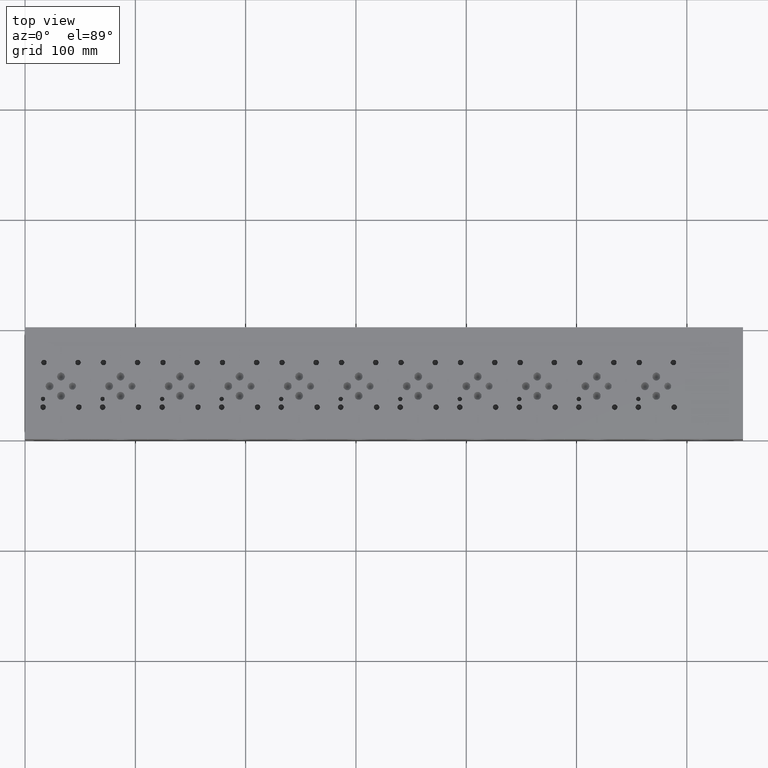
[diagram: clean part render]
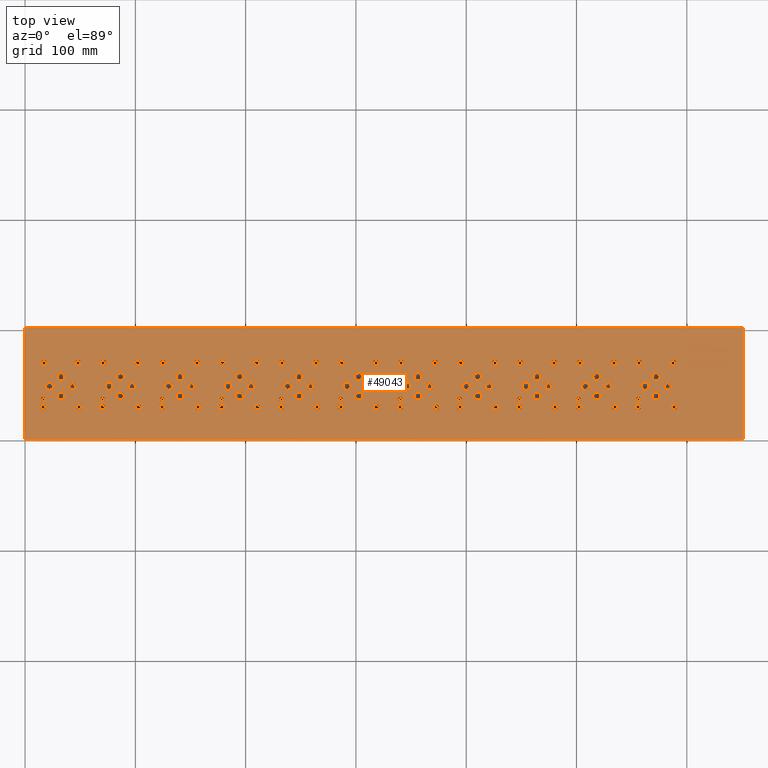
[diagram: same view with one face highlighted and labeled with its STEP entity id]
A machine part, top view. The second image highlights one B-rep face of the part: STEP entity #49043.
In plain terms, the highlighted planar face has unit normal (0, 0, 1).
Its self-contained STEP definition (entity closure, byte-faithful):
#1383=CIRCLE('',#51360,2.5019);
#1384=CIRCLE('',#51361,2.5019);
#1390=CIRCLE('',#51371,2.5019);
#1391=CIRCLE('',#51372,2.5019);
#1397=CIRCLE('',#51382,2.5019);
#1398=CIRCLE('',#51383,2.5019);
#1404=CIRCLE('',#51393,2.5019);
#1405=CIRCLE('',#51394,2.5019);
#1411=CIRCLE('',#51404,2.5019);
#1412=CIRCLE('',#51405,2.5019);
#1418=CIRCLE('',#51415,2.5019);
#1419=CIRCLE('',#51416,2.5019);
#1425=CIRCLE('',#51426,2.5019);
#1426=CIRCLE('',#51427,2.5019);
#1432=CIRCLE('',#51437,2.5019);
#1433=CIRCLE('',#51438,2.5019);
#1439=CIRCLE('',#51448,2.5019);
#1440=CIRCLE('',#51449,2.5019);
#1446=CIRCLE('',#51459,2.5019);
#1447=CIRCLE('',#51460,2.5019);
#1453=CIRCLE('',#51470,2.5019);
#1454=CIRCLE('',#51471,2.5019);
#1460=CIRCLE('',#51481,2.5019);
#1461=CIRCLE('',#51482,2.5019);
#1467=CIRCLE('',#51492,2.5019);
#1468=CIRCLE('',#51493,2.5019);
#1474=CIRCLE('',#51503,2.5019);
#1475=CIRCLE('',#51504,2.5019);
#1481=CIRCLE('',#51514,2.5019);
#1482=CIRCLE('',#51515,2.5019);
#1488=CIRCLE('',#51525,2.5019);
#1489=CIRCLE('',#51526,2.5019);
#1495=CIRCLE('',#51536,2.5019);
#1496=CIRCLE('',#51537,2.5019);
#1502=CIRCLE('',#51547,2.5019);
#1503=CIRCLE('',#51548,2.5019);
#1509=CIRCLE('',#51558,2.5019);
#1510=CIRCLE('',#51559,2.5019);
#1516=CIRCLE('',#51569,2.5019);
#1517=CIRCLE('',#51570,2.5019);
#1523=CIRCLE('',#51580,2.5019);
#1524=CIRCLE('',#51581,2.5019);
#1530=CIRCLE('',#51591,2.5019);
#1531=CIRCLE('',#51592,2.5019);
#1537=CIRCLE('',#51602,2.5019);
#1538=CIRCLE('',#51603,2.5019);
#1544=CIRCLE('',#51613,2.5019);
#1545=CIRCLE('',#51614,2.5019);
#1551=CIRCLE('',#51624,2.5019);
#1552=CIRCLE('',#51625,2.5019);
#1558=CIRCLE('',#51635,2.5019);
#1559=CIRCLE('',#51636,2.5019);
#1565=CIRCLE('',#51646,2.5019);
#1566=CIRCLE('',#51647,2.5019);
#1572=CIRCLE('',#51657,2.5019);
#1573=CIRCLE('',#51658,2.5019);
#1579=CIRCLE('',#51668,2.5019);
#1580=CIRCLE('',#51669,2.5019);
#1586=CIRCLE('',#51679,2.5019);
#1587=CIRCLE('',#51680,2.5019);
#1593=CIRCLE('',#51690,2.5019);
#1594=CIRCLE('',#51691,2.5019);
#1600=CIRCLE('',#51701,2.5019);
#1601=CIRCLE('',#51702,2.5019);
#1607=CIRCLE('',#51712,2.5019);
#1608=CIRCLE('',#51713,2.5019);
#1614=CIRCLE('',#51723,2.5019);
#1615=CIRCLE('',#51724,2.5019);
#1621=CIRCLE('',#51734,2.5019);
#1622=CIRCLE('',#51735,2.5019);
#1628=CIRCLE('',#51745,2.5019);
#1629=CIRCLE('',#51746,2.5019);
#1635=CIRCLE('',#51756,2.5019);
#1636=CIRCLE('',#51757,2.5019);
#1642=CIRCLE('',#51767,2.5019);
#1643=CIRCLE('',#51768,2.5019);
#1649=CIRCLE('',#51778,2.5019);
#1650=CIRCLE('',#51779,2.5019);
#1656=CIRCLE('',#51789,2.5019);
#1657=CIRCLE('',#51790,2.5019);
#1660=CIRCLE('',#51796,3.175);
#1661=CIRCLE('',#51797,3.175);
#1664=CIRCLE('',#51802,3.175);
#1665=CIRCLE('',#51803,3.175);
#1668=CIRCLE('',#51808,3.175);
#1669=CIRCLE('',#51809,3.175);
#1672=CIRCLE('',#51814,3.175);
#1673=CIRCLE('',#51815,3.175);
#1676=CIRCLE('',#51820,3.175);
#1677=CIRCLE('',#51821,3.175);
#1680=CIRCLE('',#51826,3.175);
#1681=CIRCLE('',#51827,3.175);
#1684=CIRCLE('',#51832,3.175);
#1685=CIRCLE('',#51833,3.175);
#1688=CIRCLE('',#51838,3.175);
#1689=CIRCLE('',#51839,3.175);
#1692=CIRCLE('',#51844,3.175);
#1693=CIRCLE('',#51845,3.175);
#1696=CIRCLE('',#51850,3.175);
#1697=CIRCLE('',#51851,3.175);
#1700=CIRCLE('',#51856,3.175);
#1701=CIRCLE('',#51857,3.175);
#1704=CIRCLE('',#51862,3.5687);
#1705=CIRCLE('',#51863,3.5687);
#1708=CIRCLE('',#51868,3.5687);
#1709=CIRCLE('',#51869,3.5687);
#1712=CIRCLE('',#51874,3.5687);
#1713=CIRCLE('',#51875,3.5687);
#1716=CIRCLE('',#51880,3.5687);
#1717=CIRCLE('',#51881,3.5687);
#1720=CIRCLE('',#51886,3.5687);
#1721=CIRCLE('',#51887,3.5687);
#1724=CIRCLE('',#51892,3.5687);
#1725=CIRCLE('',#51893,3.5687);
#1728=CIRCLE('',#51898,3.5687);
#1729=CIRCLE('',#51899,3.5687);
#1732=CIRCLE('',#51904,3.5687);
#1733=CIRCLE('',#51905,3.5687);
#1736=CIRCLE('',#51910,3.5687);
#1737=CIRCLE('',#51911,3.5687);
#1740=CIRCLE('',#51916,3.5687);
#1741=CIRCLE('',#51917,3.5687);
#1744=CIRCLE('',#51922,3.5687);
#1745=CIRCLE('',#51923,3.5687);
#1748=CIRCLE('',#51928,3.5687);
#1749=CIRCLE('',#51929,3.5687);
#1752=CIRCLE('',#51934,3.5687);
#1753=CIRCLE('',#51935,3.5687);
#1756=CIRCLE('',#51940,3.5687);
#1757=CIRCLE('',#51941,3.5687);
#1760=CIRCLE('',#51946,3.5687);
#1761=CIRCLE('',#51947,3.5687);
#1764=CIRCLE('',#51952,3.5687);
#1765=CIRCLE('',#51953,3.5687);
#1768=CIRCLE('',#51958,3.5687);
#1769=CIRCLE('',#51959,3.5687);
#1772=CIRCLE('',#51964,3.5687);
#1773=CIRCLE('',#51965,3.5687);
#1776=CIRCLE('',#51970,3.5687);
#1777=CIRCLE('',#51971,3.5687);
#1780=CIRCLE('',#51976,3.5687);
#1781=CIRCLE('',#51977,3.5687);
#1784=CIRCLE('',#51982,3.5687);
#1785=CIRCLE('',#51983,3.5687);
#1788=CIRCLE('',#51988,3.5687);
#1789=CIRCLE('',#51989,3.5687);
#1792=CIRCLE('',#51994,3.5687);
#1793=CIRCLE('',#51995,3.5687);
#1796=CIRCLE('',#52000,3.5687);
#1797=CIRCLE('',#52001,3.5687);
#1800=CIRCLE('',#52006,3.5687);
#1801=CIRCLE('',#52007,3.5687);
#1804=CIRCLE('',#52012,3.5687);
#1805=CIRCLE('',#52013,3.5687);
#1808=CIRCLE('',#52018,3.5687);
#1809=CIRCLE('',#52019,3.5687);
#1812=CIRCLE('',#52024,3.5687);
#1813=CIRCLE('',#52025,3.5687);
#1816=CIRCLE('',#52030,3.5687);
#1817=CIRCLE('',#52031,3.5687);
#1820=CIRCLE('',#52036,3.5687);
#1821=CIRCLE('',#52037,3.5687);
#1824=CIRCLE('',#52042,3.5687);
#1825=CIRCLE('',#52043,3.5687);
#1828=CIRCLE('',#52048,3.5687);
#1829=CIRCLE('',#52049,3.5687);
#1832=CIRCLE('',#52054,3.5687);
#1833=CIRCLE('',#52055,3.5687);
#1836=CIRCLE('',#52060,1.9812);
#1837=CIRCLE('',#52061,1.9812);
#1840=CIRCLE('',#52066,1.9812);
#1841=CIRCLE('',#52067,1.9812);
#1844=CIRCLE('',#52072,1.9812);
#1845=CIRCLE('',#52073,1.9812);
#1848=CIRCLE('',#52078,1.9812);
#1849=CIRCLE('',#52079,1.9812);
#1852=CIRCLE('',#52084,1.9812);
#1853=CIRCLE('',#52085,1.9812);
#1856=CIRCLE('',#52090,1.9812);
#1857=CIRCLE('',#52091,1.9812);
#1860=CIRCLE('',#52096,1.9812);
#1861=CIRCLE('',#52097,1.9812);
#1864=CIRCLE('',#52102,1.9812);
#1865=CIRCLE('',#52103,1.9812);
#1868=CIRCLE('',#52108,1.9812);
#1869=CIRCLE('',#52109,1.9812);
#1872=CIRCLE('',#52114,1.9812);
#1873=CIRCLE('',#52115,1.9812);
#1876=CIRCLE('',#52120,1.9812);
#1877=CIRCLE('',#52121,1.9812);
#1883=CIRCLE('',#52130,2.5019);
#1884=CIRCLE('',#52131,2.5019);
#1890=CIRCLE('',#52141,2.5019);
#1891=CIRCLE('',#52142,2.5019);
#1897=CIRCLE('',#52152,2.5019);
#1898=CIRCLE('',#52153,2.5019);
#1904=CIRCLE('',#52163,2.5019);
#1905=CIRCLE('',#52164,2.5019);
#2291=FACE_BOUND('',#10132,.T.);
#2292=FACE_BOUND('',#10133,.T.);
#2293=FACE_BOUND('',#10134,.T.);
#2294=FACE_BOUND('',#10135,.T.);
#2295=FACE_BOUND('',#10136,.T.);
#2296=FACE_BOUND('',#10137,.T.);
#2297=FACE_BOUND('',#10138,.T.);
#2298=FACE_BOUND('',#10139,.T.);
#2299=FACE_BOUND('',#10140,.T.);
#2300=FACE_BOUND('',#10141,.T.);
#2301=FACE_BOUND('',#10142,.T.);
#2302=FACE_BOUND('',#10143,.T.);
#2303=FACE_BOUND('',#10144,.T.);
#2304=FACE_BOUND('',#10145,.T.);
#2305=FACE_BOUND('',#10146,.T.);
#2306=FACE_BOUND('',#10147,.T.);
#2307=FACE_BOUND('',#10148,.T.);
#2308=FACE_BOUND('',#10149,.T.);
#2309=FACE_BOUND('',#10150,.T.);
#2310=FACE_BOUND('',#10151,.T.);
#2311=FACE_BOUND('',#10152,.T.);
#2312=FACE_BOUND('',#10153,.T.);
#2313=FACE_BOUND('',#10154,.T.);
#2314=FACE_BOUND('',#10155,.T.);
#2315=FACE_BOUND('',#10156,.T.);
#2316=FACE_BOUND('',#10157,.T.);
#2317=FACE_BOUND('',#10158,.T.);
#2318=FACE_BOUND('',#10159,.T.);
#2319=FACE_BOUND('',#10160,.T.);
#2320=FACE_BOUND('',#10161,.T.);
#2321=FACE_BOUND('',#10162,.T.);
#2322=FACE_BOUND('',#10163,.T.);
#2323=FACE_BOUND('',#10164,.T.);
#2324=FACE_BOUND('',#10165,.T.);
#2325=FACE_BOUND('',#10166,.T.);
#2326=FACE_BOUND('',#10167,.T.);
#2327=FACE_BOUND('',#10168,.T.);
#2328=FACE_BOUND('',#10169,.T.);
#2329=FACE_BOUND('',#10170,.T.);
#2330=FACE_BOUND('',#10171,.T.);
#2331=FACE_BOUND('',#10172,.T.);
#2332=FACE_BOUND('',#10173,.T.);
#2333=FACE_BOUND('',#10174,.T.);
#2334=FACE_BOUND('',#10175,.T.);
#2335=FACE_BOUND('',#10176,.T.);
#2336=FACE_BOUND('',#10177,.T.);
#2337=FACE_BOUND('',#10178,.T.);
#2338=FACE_BOUND('',#10179,.T.);
#2339=FACE_BOUND('',#10180,.T.);
#2340=FACE_BOUND('',#10181,.T.);
#2341=FACE_BOUND('',#10182,.T.);
#2342=FACE_BOUND('',#10183,.T.);
#2343=FACE_BOUND('',#10184,.T.);
#2344=FACE_BOUND('',#10185,.T.);
#2345=FACE_BOUND('',#10186,.T.);
#2346=FACE_BOUND('',#10187,.T.);
#2347=FACE_BOUND('',#10188,.T.);
#2348=FACE_BOUND('',#10189,.T.);
#2349=FACE_BOUND('',#10190,.T.);
#2350=FACE_BOUND('',#10191,.T.);
#2351=FACE_BOUND('',#10192,.T.);
#2352=FACE_BOUND('',#10193,.T.);
#2353=FACE_BOUND('',#10194,.T.);
#2354=FACE_BOUND('',#10195,.T.);
#2355=FACE_BOUND('',#10196,.T.);
#2356=FACE_BOUND('',#10197,.T.);
#2357=FACE_BOUND('',#10198,.T.);
#2358=FACE_BOUND('',#10199,.T.);
#2359=FACE_BOUND('',#10200,.T.);
#2360=FACE_BOUND('',#10201,.T.);
#2361=FACE_BOUND('',#10202,.T.);
#2362=FACE_BOUND('',#10203,.T.);
#2363=FACE_BOUND('',#10204,.T.);
#2364=FACE_BOUND('',#10205,.T.);
#2365=FACE_BOUND('',#10206,.T.);
#2366=FACE_BOUND('',#10207,.T.);
#2367=FACE_BOUND('',#10208,.T.);
#2368=FACE_BOUND('',#10209,.T.);
#2369=FACE_BOUND('',#10210,.T.);
#2370=FACE_BOUND('',#10211,.T.);
#2371=FACE_BOUND('',#10212,.T.);
#2372=FACE_BOUND('',#10213,.T.);
#2373=FACE_BOUND('',#10214,.T.);
#2374=FACE_BOUND('',#10215,.T.);
#2375=FACE_BOUND('',#10216,.T.);
#2376=FACE_BOUND('',#10217,.T.);
#2377=FACE_BOUND('',#10218,.T.);
#2378=FACE_BOUND('',#10219,.T.);
#2379=FACE_BOUND('',#10220,.T.);
#2380=FACE_BOUND('',#10221,.T.);
#2381=FACE_BOUND('',#10222,.T.);
#2382=FACE_BOUND('',#10223,.T.);
#2383=FACE_BOUND('',#10224,.T.);
#2384=FACE_BOUND('',#10225,.T.);
#2385=FACE_BOUND('',#10226,.T.);
#2386=FACE_BOUND('',#10227,.T.);
#2387=FACE_BOUND('',#10228,.T.);
#2388=FACE_BOUND('',#10229,.T.);
#2389=FACE_BOUND('',#10230,.T.);
#7205=FACE_OUTER_BOUND('',#10131,.T.);
#10131=EDGE_LOOP('',(#43334,#43335,#43336,#43337));
#10132=EDGE_LOOP('',(#43338,#43339));
#10133=EDGE_LOOP('',(#43340,#43341));
#10134=EDGE_LOOP('',(#43342,#43343));
#10135=EDGE_LOOP('',(#43344,#43345));
#10136=EDGE_LOOP('',(#43346,#43347));
#10137=EDGE_LOOP('',(#43348,#43349));
#10138=EDGE_LOOP('',(#43350,#43351));
#10139=EDGE_LOOP('',(#43352,#43353));
#10140=EDGE_LOOP('',(#43354,#43355));
#10141=EDGE_LOOP('',(#43356,#43357));
#10142=EDGE_LOOP('',(#43358,#43359));
#10143=EDGE_LOOP('',(#43360,#43361));
#10144=EDGE_LOOP('',(#43362,#43363));
#10145=EDGE_LOOP('',(#43364,#43365));
#10146=EDGE_LOOP('',(#43366,#43367));
#10147=EDGE_LOOP('',(#43368,#43369));
#10148=EDGE_LOOP('',(#43370,#43371));
#10149=EDGE_LOOP('',(#43372,#43373));
#10150=EDGE_LOOP('',(#43374,#43375));
#10151=EDGE_LOOP('',(#43376,#43377));
#10152=EDGE_LOOP('',(#43378,#43379));
#10153=EDGE_LOOP('',(#43380,#43381));
#10154=EDGE_LOOP('',(#43382,#43383));
#10155=EDGE_LOOP('',(#43384,#43385));
#10156=EDGE_LOOP('',(#43386,#43387));
#10157=EDGE_LOOP('',(#43388,#43389));
#10158=EDGE_LOOP('',(#43390,#43391));
#10159=EDGE_LOOP('',(#43392,#43393));
#10160=EDGE_LOOP('',(#43394,#43395));
#10161=EDGE_LOOP('',(#43396,#43397));
#10162=EDGE_LOOP('',(#43398,#43399));
#10163=EDGE_LOOP('',(#43400,#43401));
#10164=EDGE_LOOP('',(#43402,#43403));
#10165=EDGE_LOOP('',(#43404,#43405));
#10166=EDGE_LOOP('',(#43406,#43407));
#10167=EDGE_LOOP('',(#43408,#43409));
#10168=EDGE_LOOP('',(#43410,#43411));
#10169=EDGE_LOOP('',(#43412,#43413));
#10170=EDGE_LOOP('',(#43414,#43415));
#10171=EDGE_LOOP('',(#43416,#43417));
#10172=EDGE_LOOP('',(#43418,#43419));
#10173=EDGE_LOOP('',(#43420,#43421));
#10174=EDGE_LOOP('',(#43422,#43423));
#10175=EDGE_LOOP('',(#43424,#43425));
#10176=EDGE_LOOP('',(#43426,#43427));
#10177=EDGE_LOOP('',(#43428,#43429));
#10178=EDGE_LOOP('',(#43430,#43431));
#10179=EDGE_LOOP('',(#43432,#43433));
#10180=EDGE_LOOP('',(#43434,#43435));
#10181=EDGE_LOOP('',(#43436,#43437));
#10182=EDGE_LOOP('',(#43438,#43439));
#10183=EDGE_LOOP('',(#43440,#43441));
#10184=EDGE_LOOP('',(#43442,#43443));
#10185=EDGE_LOOP('',(#43444,#43445));
#10186=EDGE_LOOP('',(#43446,#43447));
#10187=EDGE_LOOP('',(#43448,#43449));
#10188=EDGE_LOOP('',(#43450,#43451));
#10189=EDGE_LOOP('',(#43452,#43453));
#10190=EDGE_LOOP('',(#43454,#43455));
#10191=EDGE_LOOP('',(#43456,#43457));
#10192=EDGE_LOOP('',(#43458,#43459));
#10193=EDGE_LOOP('',(#43460,#43461));
#10194=EDGE_LOOP('',(#43462,#43463));
#10195=EDGE_LOOP('',(#43464,#43465));
#10196=EDGE_LOOP('',(#43466,#43467));
#10197=EDGE_LOOP('',(#43468,#43469));
#10198=EDGE_LOOP('',(#43470,#43471));
#10199=EDGE_LOOP('',(#43472,#43473));
#10200=EDGE_LOOP('',(#43474,#43475));
#10201=EDGE_LOOP('',(#43476,#43477));
#10202=EDGE_LOOP('',(#43478,#43479));
#10203=EDGE_LOOP('',(#43480,#43481));
#10204=EDGE_LOOP('',(#43482,#43483));
#10205=EDGE_LOOP('',(#43484,#43485));
#10206=EDGE_LOOP('',(#43486,#43487));
#10207=EDGE_LOOP('',(#43488,#43489));
#10208=EDGE_LOOP('',(#43490,#43491));
#10209=EDGE_LOOP('',(#43492,#43493));
#10210=EDGE_LOOP('',(#43494,#43495));
#10211=EDGE_LOOP('',(#43496,#43497));
#10212=EDGE_LOOP('',(#43498,#43499));
#10213=EDGE_LOOP('',(#43500,#43501));
#10214=EDGE_LOOP('',(#43502,#43503));
#10215=EDGE_LOOP('',(#43504,#43505));
#10216=EDGE_LOOP('',(#43506,#43507));
#10217=EDGE_LOOP('',(#43508,#43509));
#10218=EDGE_LOOP('',(#43510,#43511));
#10219=EDGE_LOOP('',(#43512,#43513));
#10220=EDGE_LOOP('',(#43514,#43515));
#10221=EDGE_LOOP('',(#43516,#43517));
#10222=EDGE_LOOP('',(#43518,#43519));
#10223=EDGE_LOOP('',(#43520,#43521));
#10224=EDGE_LOOP('',(#43522,#43523));
#10225=EDGE_LOOP('',(#43524,#43525));
#10226=EDGE_LOOP('',(#43526,#43527));
#10227=EDGE_LOOP('',(#43528,#43529));
#10228=EDGE_LOOP('',(#43530,#43531));
#10229=EDGE_LOOP('',(#43532,#43533));
#10230=EDGE_LOOP('',(#43534,#43535));
#10580=LINE('',#64602,#14576);
#12031=LINE('',#71963,#16027);
#12088=LINE('',#72224,#16084);
#12985=LINE('',#78733,#16981);
#14576=VECTOR('',#52716,10.);
#16027=VECTOR('',#55247,10.);
#16084=VECTOR('',#55350,10.);
#16981=VECTOR('',#56813,10.);
#18574=VERTEX_POINT('',#64599);
#18575=VERTEX_POINT('',#64601);
#20145=VERTEX_POINT('',#71961);
#20198=VERTEX_POINT('',#72223);
#22390=VERTEX_POINT('',#84775);
#22391=VERTEX_POINT('',#84776);
#22398=VERTEX_POINT('',#84797);
#22399=VERTEX_POINT('',#84798);
#22406=VERTEX_POINT('',#84819);
#22407=VERTEX_POINT('',#84820);
#22414=VERTEX_POINT('',#84841);
#22415=VERTEX_POINT('',#84842);
#22422=VERTEX_POINT('',#84863);
#22423=VERTEX_POINT('',#84864);
#22430=VERTEX_POINT('',#84885);
#22431=VERTEX_POINT('',#84886);
#22438=VERTEX_POINT('',#84907);
#22439=VERTEX_POINT('',#84908);
#22446=VERTEX_POINT('',#84929);
#22447=VERTEX_POINT('',#84930);
#22454=VERTEX_POINT('',#84951);
#22455=VERTEX_POINT('',#84952);
#22462=VERTEX_POINT('',#84973);
#22463=VERTEX_POINT('',#84974);
#22470=VERTEX_POINT('',#84995);
#22471=VERTEX_POINT('',#84996);
#22478=VERTEX_POINT('',#85017);
#22479=VERTEX_POINT('',#85018);
#22486=VERTEX_POINT('',#85039);
#22487=VERTEX_POINT('',#85040);
#22494=VERTEX_POINT('',#85061);
#22495=VERTEX_POINT('',#85062);
#22502=VERTEX_POINT('',#85083);
#22503=VERTEX_POINT('',#85084);
#22510=VERTEX_POINT('',#85105);
#22511=VERTEX_POINT('',#85106);
#22518=VERTEX_POINT('',#85127);
#22519=VERTEX_POINT('',#85128);
#22526=VERTEX_POINT('',#85149);
#22527=VERTEX_POINT('',#85150);
#22534=VERTEX_POINT('',#85171);
#22535=VERTEX_POINT('',#85172);
#22542=VERTEX_POINT('',#85193);
#22543=VERTEX_POINT('',#85194);
#22550=VERTEX_POINT('',#85215);
#22551=VERTEX_POINT('',#85216);
#22558=VERTEX_POINT('',#85237);
#22559=VERTEX_POINT('',#85238);
#22566=VERTEX_POINT('',#85259);
#22567=VERTEX_POINT('',#85260);
#22574=VERTEX_POINT('',#85281);
#22575=VERTEX_POINT('',#85282);
#22582=VERTEX_POINT('',#85303);
#22583=VERTEX_POINT('',#85304);
#22590=VERTEX_POINT('',#85325);
#22591=VERTEX_POINT('',#85326);
#22598=VERTEX_POINT('',#85347);
#22599=VERTEX_POINT('',#85348);
#22606=VERTEX_POINT('',#85369);
#22607=VERTEX_POINT('',#85370);
#22614=VERTEX_POINT('',#85391);
#22615=VERTEX_POINT('',#85392);
#22622=VERTEX_POINT('',#85413);
#22623=VERTEX_POINT('',#85414);
#22630=VERTEX_POINT('',#85435);
#22631=VERTEX_POINT('',#85436);
#22638=VERTEX_POINT('',#85457);
#22639=VERTEX_POINT('',#85458);
#22646=VERTEX_POINT('',#85479);
#22647=VERTEX_POINT('',#85480);
#22654=VERTEX_POINT('',#85501);
#22655=VERTEX_POINT('',#85502);
#22662=VERTEX_POINT('',#85523);
#22663=VERTEX_POINT('',#85524);
#22670=VERTEX_POINT('',#85545);
#22671=VERTEX_POINT('',#85546);
#22678=VERTEX_POINT('',#85567);
#22679=VERTEX_POINT('',#85568);
#22686=VERTEX_POINT('',#85589);
#22687=VERTEX_POINT('',#85590);
#22694=VERTEX_POINT('',#85611);
#22695=VERTEX_POINT('',#85612);
#22702=VERTEX_POINT('',#85633);
#22703=VERTEX_POINT('',#85634);
#22707=VERTEX_POINT('',#85648);
#22708=VERTEX_POINT('',#85649);
#22712=VERTEX_POINT('',#85661);
#22713=VERTEX_POINT('',#85662);
#22717=VERTEX_POINT('',#85674);
#22718=VERTEX_POINT('',#85675);
#22722=VERTEX_POINT('',#85687);
#22723=VERTEX_POINT('',#85688);
#22727=VERTEX_POINT('',#85700);
#22728=VERTEX_POINT('',#85701);
#22732=VERTEX_POINT('',#85713);
#22733=VERTEX_POINT('',#85714);
#22737=VERTEX_POINT('',#85726);
#22738=VERTEX_POINT('',#85727);
#22742=VERTEX_POINT('',#85739);
#22743=VERTEX_POINT('',#85740);
#22747=VERTEX_POINT('',#85752);
#22748=VERTEX_POINT('',#85753);
#22752=VERTEX_POINT('',#85765);
#22753=VERTEX_POINT('',#85766);
#22757=VERTEX_POINT('',#85778);
#22758=VERTEX_POINT('',#85779);
#22762=VERTEX_POINT('',#85791);
#22763=VERTEX_POINT('',#85792);
#22767=VERTEX_POINT('',#85804);
#22768=VERTEX_POINT('',#85805);
#22772=VERTEX_POINT('',#85817);
#22773=VERTEX_POINT('',#85818);
#22777=VERTEX_POINT('',#85830);
#22778=VERTEX_POINT('',#85831);
#22782=VERTEX_POINT('',#85843);
#22783=VERTEX_POINT('',#85844);
#22787=VERTEX_POINT('',#85856);
#22788=VERTEX_POINT('',#85857);
#22792=VERTEX_POINT('',#85869);
#22793=VERTEX_POINT('',#85870);
#22797=VERTEX_POINT('',#85882);
#22798=VERTEX_POINT('',#85883);
#22802=VERTEX_POINT('',#85895);
#22803=VERTEX_POINT('',#85896);
#22807=VERTEX_POINT('',#85908);
#22808=VERTEX_POINT('',#85909);
#22812=VERTEX_POINT('',#85921);
#22813=VERTEX_POINT('',#85922);
#22817=VERTEX_POINT('',#85934);
#22818=VERTEX_POINT('',#85935);
#22822=VERTEX_POINT('',#85947);
#22823=VERTEX_POINT('',#85948);
#22827=VERTEX_POINT('',#85960);
#22828=VERTEX_POINT('',#85961);
#22832=VERTEX_POINT('',#85973);
#22833=VERTEX_POINT('',#85974);
#22837=VERTEX_POINT('',#85986);
#22838=VERTEX_POINT('',#85987);
#22842=VERTEX_POINT('',#85999);
#22843=VERTEX_POINT('',#86000);
#22847=VERTEX_POINT('',#86012);
#22848=VERTEX_POINT('',#86013);
#22852=VERTEX_POINT('',#86025);
#22853=VERTEX_POINT('',#86026);
#22857=VERTEX_POINT('',#86038);
#22858=VERTEX_POINT('',#86039);
#22862=VERTEX_POINT('',#86051);
#22863=VERTEX_POINT('',#86052);
#22867=VERTEX_POINT('',#86064);
#22868=VERTEX_POINT('',#86065);
#22872=VERTEX_POINT('',#86077);
#22873=VERTEX_POINT('',#86078);
#22877=VERTEX_POINT('',#86090);
#22878=VERTEX_POINT('',#86091);
#22882=VERTEX_POINT('',#86103);
#22883=VERTEX_POINT('',#86104);
#22887=VERTEX_POINT('',#86116);
#22888=VERTEX_POINT('',#86117);
#22892=VERTEX_POINT('',#86129);
#22893=VERTEX_POINT('',#86130);
#22897=VERTEX_POINT('',#86142);
#22898=VERTEX_POINT('',#86143);
#22902=VERTEX_POINT('',#86155);
#22903=VERTEX_POINT('',#86156);
#22907=VERTEX_POINT('',#86168);
#22908=VERTEX_POINT('',#86169);
#22912=VERTEX_POINT('',#86181);
#22913=VERTEX_POINT('',#86182);
#22917=VERTEX_POINT('',#86194);
#22918=VERTEX_POINT('',#86195);
#22922=VERTEX_POINT('',#86207);
#22923=VERTEX_POINT('',#86208);
#22927=VERTEX_POINT('',#86220);
#22928=VERTEX_POINT('',#86221);
#22932=VERTEX_POINT('',#86233);
#22933=VERTEX_POINT('',#86234);
#22937=VERTEX_POINT('',#86246);
#22938=VERTEX_POINT('',#86247);
#22942=VERTEX_POINT('',#86259);
#22943=VERTEX_POINT('',#86260);
#22947=VERTEX_POINT('',#86272);
#22948=VERTEX_POINT('',#86273);
#22952=VERTEX_POINT('',#86285);
#22953=VERTEX_POINT('',#86286);
#22957=VERTEX_POINT('',#86298);
#22958=VERTEX_POINT('',#86299);
#22962=VERTEX_POINT('',#86311);
#22963=VERTEX_POINT('',#86312);
#22967=VERTEX_POINT('',#86324);
#22968=VERTEX_POINT('',#86325);
#22972=VERTEX_POINT('',#86337);
#22973=VERTEX_POINT('',#86338);
#22977=VERTEX_POINT('',#86350);
#22978=VERTEX_POINT('',#86351);
#22985=VERTEX_POINT('',#86370);
#22986=VERTEX_POINT('',#86371);
#22993=VERTEX_POINT('',#86392);
#22994=VERTEX_POINT('',#86393);
#23001=VERTEX_POINT('',#86414);
#23002=VERTEX_POINT('',#86415);
#23009=VERTEX_POINT('',#86436);
#23010=VERTEX_POINT('',#86437);
#23535=EDGE_CURVE('',#18575,#18574,#10580,.T.);
#25664=EDGE_CURVE('',#18574,#20145,#12031,.T.);
#25741=EDGE_CURVE('',#20198,#18575,#12088,.T.);
#27092=EDGE_CURVE('',#20145,#20198,#12985,.T.);
#29091=EDGE_CURVE('',#22390,#22391,#1383,.T.);
#29092=EDGE_CURVE('',#22391,#22390,#1384,.T.);
#29101=EDGE_CURVE('',#22398,#22399,#1390,.T.);
#29102=EDGE_CURVE('',#22399,#22398,#1391,.T.);
#29111=EDGE_CURVE('',#22406,#22407,#1397,.T.);
#29112=EDGE_CURVE('',#22407,#22406,#1398,.T.);
#29121=EDGE_CURVE('',#22414,#22415,#1404,.T.);
#29122=EDGE_CURVE('',#22415,#22414,#1405,.T.);
#29131=EDGE_CURVE('',#22422,#22423,#1411,.T.);
#29132=EDGE_CURVE('',#22423,#22422,#1412,.T.);
#29141=EDGE_CURVE('',#22430,#22431,#1418,.T.);
#29142=EDGE_CURVE('',#22431,#22430,#1419,.T.);
#29151=EDGE_CURVE('',#22438,#22439,#1425,.T.);
#29152=EDGE_CURVE('',#22439,#22438,#1426,.T.);
#29161=EDGE_CURVE('',#22446,#22447,#1432,.T.);
#29162=EDGE_CURVE('',#22447,#22446,#1433,.T.);
#29171=EDGE_CURVE('',#22454,#22455,#1439,.T.);
#29172=EDGE_CURVE('',#22455,#22454,#1440,.T.);
#29181=EDGE_CURVE('',#22462,#22463,#1446,.T.);
#29182=EDGE_CURVE('',#22463,#22462,#1447,.T.);
#29191=EDGE_CURVE('',#22470,#22471,#1453,.T.);
#29192=EDGE_CURVE('',#22471,#22470,#1454,.T.);
#29201=EDGE_CURVE('',#22478,#22479,#1460,.T.);
#29202=EDGE_CURVE('',#22479,#22478,#1461,.T.);
#29211=EDGE_CURVE('',#22486,#22487,#1467,.T.);
#29212=EDGE_CURVE('',#22487,#22486,#1468,.T.);
#29221=EDGE_CURVE('',#22494,#22495,#1474,.T.);
#29222=EDGE_CURVE('',#22495,#22494,#1475,.T.);
#29231=EDGE_CURVE('',#22502,#22503,#1481,.T.);
#29232=EDGE_CURVE('',#22503,#22502,#1482,.T.);
#29241=EDGE_CURVE('',#22510,#22511,#1488,.T.);
#29242=EDGE_CURVE('',#22511,#22510,#1489,.T.);
#29251=EDGE_CURVE('',#22518,#22519,#1495,.T.);
#29252=EDGE_CURVE('',#22519,#22518,#1496,.T.);
#29261=EDGE_CURVE('',#22526,#22527,#1502,.T.);
#29262=EDGE_CURVE('',#22527,#22526,#1503,.T.);
#29271=EDGE_CURVE('',#22534,#22535,#1509,.T.);
#29272=EDGE_CURVE('',#22535,#22534,#1510,.T.);
#29281=EDGE_CURVE('',#22542,#22543,#1516,.T.);
#29282=EDGE_CURVE('',#22543,#22542,#1517,.T.);
#29291=EDGE_CURVE('',#22550,#22551,#1523,.T.);
#29292=EDGE_CURVE('',#22551,#22550,#1524,.T.);
#29301=EDGE_CURVE('',#22558,#22559,#1530,.T.);
#29302=EDGE_CURVE('',#22559,#22558,#1531,.T.);
#29311=EDGE_CURVE('',#22566,#22567,#1537,.T.);
#29312=EDGE_CURVE('',#22567,#22566,#1538,.T.);
#29321=EDGE_CURVE('',#22574,#22575,#1544,.T.);
#29322=EDGE_CURVE('',#22575,#22574,#1545,.T.);
#29331=EDGE_CURVE('',#22582,#22583,#1551,.T.);
#29332=EDGE_CURVE('',#22583,#22582,#1552,.T.);
#29341=EDGE_CURVE('',#22590,#22591,#1558,.T.);
#29342=EDGE_CURVE('',#22591,#22590,#1559,.T.);
#29351=EDGE_CURVE('',#22598,#22599,#1565,.T.);
#29352=EDGE_CURVE('',#22599,#22598,#1566,.T.);
#29361=EDGE_CURVE('',#22606,#22607,#1572,.T.);
#29362=EDGE_CURVE('',#22607,#22606,#1573,.T.);
#29371=EDGE_CURVE('',#22614,#22615,#1579,.T.);
#29372=EDGE_CURVE('',#22615,#22614,#1580,.T.);
#29381=EDGE_CURVE('',#22622,#22623,#1586,.T.);
#29382=EDGE_CURVE('',#22623,#22622,#1587,.T.);
#29391=EDGE_CURVE('',#22630,#22631,#1593,.T.);
#29392=EDGE_CURVE('',#22631,#22630,#1594,.T.);
#29401=EDGE_CURVE('',#22638,#22639,#1600,.T.);
#29402=EDGE_CURVE('',#22639,#22638,#1601,.T.);
#29411=EDGE_CURVE('',#22646,#22647,#1607,.T.);
#29412=EDGE_CURVE('',#22647,#22646,#1608,.T.);
#29421=EDGE_CURVE('',#22654,#22655,#1614,.T.);
#29422=EDGE_CURVE('',#22655,#22654,#1615,.T.);
#29431=EDGE_CURVE('',#22662,#22663,#1621,.T.);
#29432=EDGE_CURVE('',#22663,#22662,#1622,.T.);
#29441=EDGE_CURVE('',#22670,#22671,#1628,.T.);
#29442=EDGE_CURVE('',#22671,#22670,#1629,.T.);
#29451=EDGE_CURVE('',#22678,#22679,#1635,.T.);
#29452=EDGE_CURVE('',#22679,#22678,#1636,.T.);
#29461=EDGE_CURVE('',#22686,#22687,#1642,.T.);
#29462=EDGE_CURVE('',#22687,#22686,#1643,.T.);
#29471=EDGE_CURVE('',#22694,#22695,#1649,.T.);
#29472=EDGE_CURVE('',#22695,#22694,#1650,.T.);
#29481=EDGE_CURVE('',#22702,#22703,#1656,.T.);
#29482=EDGE_CURVE('',#22703,#22702,#1657,.T.);
#29488=EDGE_CURVE('',#22707,#22708,#1660,.T.);
#29489=EDGE_CURVE('',#22708,#22707,#1661,.T.);
#29494=EDGE_CURVE('',#22712,#22713,#1664,.T.);
#29495=EDGE_CURVE('',#22713,#22712,#1665,.T.);
#29500=EDGE_CURVE('',#22717,#22718,#1668,.T.);
#29501=EDGE_CURVE('',#22718,#22717,#1669,.T.);
#29506=EDGE_CURVE('',#22722,#22723,#1672,.T.);
#29507=EDGE_CURVE('',#22723,#22722,#1673,.T.);
#29512=EDGE_CURVE('',#22727,#22728,#1676,.T.);
#29513=EDGE_CURVE('',#22728,#22727,#1677,.T.);
#29518=EDGE_CURVE('',#22732,#22733,#1680,.T.);
#29519=EDGE_CURVE('',#22733,#22732,#1681,.T.);
#29524=EDGE_CURVE('',#22737,#22738,#1684,.T.);
#29525=EDGE_CURVE('',#22738,#22737,#1685,.T.);
#29530=EDGE_CURVE('',#22742,#22743,#1688,.T.);
#29531=EDGE_CURVE('',#22743,#22742,#1689,.T.);
#29536=EDGE_CURVE('',#22747,#22748,#1692,.T.);
#29537=EDGE_CURVE('',#22748,#22747,#1693,.T.);
#29542=EDGE_CURVE('',#22752,#22753,#1696,.T.);
#29543=EDGE_CURVE('',#22753,#22752,#1697,.T.);
#29548=EDGE_CURVE('',#22757,#22758,#1700,.T.);
#29549=EDGE_CURVE('',#22758,#22757,#1701,.T.);
#29554=EDGE_CURVE('',#22762,#22763,#1704,.T.);
#29555=EDGE_CURVE('',#22763,#22762,#1705,.T.);
#29560=EDGE_CURVE('',#22767,#22768,#1708,.T.);
#29561=EDGE_CURVE('',#22768,#22767,#1709,.T.);
#29566=EDGE_CURVE('',#22772,#22773,#1712,.T.);
#29567=EDGE_CURVE('',#22773,#22772,#1713,.T.);
#29572=EDGE_CURVE('',#22777,#22778,#1716,.T.);
#29573=EDGE_CURVE('',#22778,#22777,#1717,.T.);
#29578=EDGE_CURVE('',#22782,#22783,#1720,.T.);
#29579=EDGE_CURVE('',#22783,#22782,#1721,.T.);
#29584=EDGE_CURVE('',#22787,#22788,#1724,.T.);
#29585=EDGE_CURVE('',#22788,#22787,#1725,.T.);
#29590=EDGE_CURVE('',#22792,#22793,#1728,.T.);
#29591=EDGE_CURVE('',#22793,#22792,#1729,.T.);
#29596=EDGE_CURVE('',#22797,#22798,#1732,.T.);
#29597=EDGE_CURVE('',#22798,#22797,#1733,.T.);
#29602=EDGE_CURVE('',#22802,#22803,#1736,.T.);
#29603=EDGE_CURVE('',#22803,#22802,#1737,.T.);
#29608=EDGE_CURVE('',#22807,#22808,#1740,.T.);
#29609=EDGE_CURVE('',#22808,#22807,#1741,.T.);
#29614=EDGE_CURVE('',#22812,#22813,#1744,.T.);
#29615=EDGE_CURVE('',#22813,#22812,#1745,.T.);
#29620=EDGE_CURVE('',#22817,#22818,#1748,.T.);
#29621=EDGE_CURVE('',#22818,#22817,#1749,.T.);
#29626=EDGE_CURVE('',#22822,#22823,#1752,.T.);
#29627=EDGE_CURVE('',#22823,#22822,#1753,.T.);
#29632=EDGE_CURVE('',#22827,#22828,#1756,.T.);
#29633=EDGE_CURVE('',#22828,#22827,#1757,.T.);
#29638=EDGE_CURVE('',#22832,#22833,#1760,.T.);
#29639=EDGE_CURVE('',#22833,#22832,#1761,.T.);
#29644=EDGE_CURVE('',#22837,#22838,#1764,.T.);
#29645=EDGE_CURVE('',#22838,#22837,#1765,.T.);
#29650=EDGE_CURVE('',#22842,#22843,#1768,.T.);
#29651=EDGE_CURVE('',#22843,#22842,#1769,.T.);
#29656=EDGE_CURVE('',#22847,#22848,#1772,.T.);
#29657=EDGE_CURVE('',#22848,#22847,#1773,.T.);
#29662=EDGE_CURVE('',#22852,#22853,#1776,.T.);
#29663=EDGE_CURVE('',#22853,#22852,#1777,.T.);
#29668=EDGE_CURVE('',#22857,#22858,#1780,.T.);
#29669=EDGE_CURVE('',#22858,#22857,#1781,.T.);
#29674=EDGE_CURVE('',#22862,#22863,#1784,.T.);
#29675=EDGE_CURVE('',#22863,#22862,#1785,.T.);
#29680=EDGE_CURVE('',#22867,#22868,#1788,.T.);
#29681=EDGE_CURVE('',#22868,#22867,#1789,.T.);
#29686=EDGE_CURVE('',#22872,#22873,#1792,.T.);
#29687=EDGE_CURVE('',#22873,#22872,#1793,.T.);
#29692=EDGE_CURVE('',#22877,#22878,#1796,.T.);
#29693=EDGE_CURVE('',#22878,#22877,#1797,.T.);
#29698=EDGE_CURVE('',#22882,#22883,#1800,.T.);
#29699=EDGE_CURVE('',#22883,#22882,#1801,.T.);
#29704=EDGE_CURVE('',#22887,#22888,#1804,.T.);
#29705=EDGE_CURVE('',#22888,#22887,#1805,.T.);
#29710=EDGE_CURVE('',#22892,#22893,#1808,.T.);
#29711=EDGE_CURVE('',#22893,#22892,#1809,.T.);
#29716=EDGE_CURVE('',#22897,#22898,#1812,.T.);
#29717=EDGE_CURVE('',#22898,#22897,#1813,.T.);
#29722=EDGE_CURVE('',#22902,#22903,#1816,.T.);
#29723=EDGE_CURVE('',#22903,#22902,#1817,.T.);
#29728=EDGE_CURVE('',#22907,#22908,#1820,.T.);
#29729=EDGE_CURVE('',#22908,#22907,#1821,.T.);
#29734=EDGE_CURVE('',#22912,#22913,#1824,.T.);
#29735=EDGE_CURVE('',#22913,#22912,#1825,.T.);
#29740=EDGE_CURVE('',#22917,#22918,#1828,.T.);
#29741=EDGE_CURVE('',#22918,#22917,#1829,.T.);
#29746=EDGE_CURVE('',#22922,#22923,#1832,.T.);
#29747=EDGE_CURVE('',#22923,#22922,#1833,.T.);
#29752=EDGE_CURVE('',#22927,#22928,#1836,.T.);
#29753=EDGE_CURVE('',#22928,#22927,#1837,.T.);
#29758=EDGE_CURVE('',#22932,#22933,#1840,.T.);
#29759=EDGE_CURVE('',#22933,#22932,#1841,.T.);
#29764=EDGE_CURVE('',#22937,#22938,#1844,.T.);
#29765=EDGE_CURVE('',#22938,#22937,#1845,.T.);
#29770=EDGE_CURVE('',#22942,#22943,#1848,.T.);
#29771=EDGE_CURVE('',#22943,#22942,#1849,.T.);
#29776=EDGE_CURVE('',#22947,#22948,#1852,.T.);
#29777=EDGE_CURVE('',#22948,#22947,#1853,.T.);
#29782=EDGE_CURVE('',#22952,#22953,#1856,.T.);
#29783=EDGE_CURVE('',#22953,#22952,#1857,.T.);
#29788=EDGE_CURVE('',#22957,#22958,#1860,.T.);
#29789=EDGE_CURVE('',#22958,#22957,#1861,.T.);
#29794=EDGE_CURVE('',#22962,#22963,#1864,.T.);
#29795=EDGE_CURVE('',#22963,#22962,#1865,.T.);
#29800=EDGE_CURVE('',#22967,#22968,#1868,.T.);
#29801=EDGE_CURVE('',#22968,#22967,#1869,.T.);
#29806=EDGE_CURVE('',#22972,#22973,#1872,.T.);
#29807=EDGE_CURVE('',#22973,#22972,#1873,.T.);
#29812=EDGE_CURVE('',#22977,#22978,#1876,.T.);
#29813=EDGE_CURVE('',#22978,#22977,#1877,.T.);
#29821=EDGE_CURVE('',#22985,#22986,#1883,.T.);
#29822=EDGE_CURVE('',#22986,#22985,#1884,.T.);
#29831=EDGE_CURVE('',#22993,#22994,#1890,.T.);
#29832=EDGE_CURVE('',#22994,#22993,#1891,.T.);
#29841=EDGE_CURVE('',#23001,#23002,#1897,.T.);
#29842=EDGE_CURVE('',#23002,#23001,#1898,.T.);
#29851=EDGE_CURVE('',#23009,#23010,#1904,.T.);
#29852=EDGE_CURVE('',#23010,#23009,#1905,.T.);
#43334=ORIENTED_EDGE('',*,*,#23535,.T.);
#43335=ORIENTED_EDGE('',*,*,#25664,.T.);
#43336=ORIENTED_EDGE('',*,*,#27092,.T.);
#43337=ORIENTED_EDGE('',*,*,#25741,.T.);
#43338=ORIENTED_EDGE('',*,*,#29091,.T.);
#43339=ORIENTED_EDGE('',*,*,#29092,.T.);
#43340=ORIENTED_EDGE('',*,*,#29101,.T.);
#43341=ORIENTED_EDGE('',*,*,#29102,.T.);
#43342=ORIENTED_EDGE('',*,*,#29111,.T.);
#43343=ORIENTED_EDGE('',*,*,#29112,.T.);
#43344=ORIENTED_EDGE('',*,*,#29121,.T.);
#43345=ORIENTED_EDGE('',*,*,#29122,.T.);
#43346=ORIENTED_EDGE('',*,*,#29131,.T.);
#43347=ORIENTED_EDGE('',*,*,#29132,.T.);
#43348=ORIENTED_EDGE('',*,*,#29141,.T.);
#43349=ORIENTED_EDGE('',*,*,#29142,.T.);
#43350=ORIENTED_EDGE('',*,*,#29151,.T.);
#43351=ORIENTED_EDGE('',*,*,#29152,.T.);
#43352=ORIENTED_EDGE('',*,*,#29161,.T.);
#43353=ORIENTED_EDGE('',*,*,#29162,.T.);
#43354=ORIENTED_EDGE('',*,*,#29171,.T.);
#43355=ORIENTED_EDGE('',*,*,#29172,.T.);
#43356=ORIENTED_EDGE('',*,*,#29181,.T.);
#43357=ORIENTED_EDGE('',*,*,#29182,.T.);
#43358=ORIENTED_EDGE('',*,*,#29191,.T.);
#43359=ORIENTED_EDGE('',*,*,#29192,.T.);
#43360=ORIENTED_EDGE('',*,*,#29201,.T.);
#43361=ORIENTED_EDGE('',*,*,#29202,.T.);
#43362=ORIENTED_EDGE('',*,*,#29211,.T.);
#43363=ORIENTED_EDGE('',*,*,#29212,.T.);
#43364=ORIENTED_EDGE('',*,*,#29221,.T.);
#43365=ORIENTED_EDGE('',*,*,#29222,.T.);
#43366=ORIENTED_EDGE('',*,*,#29231,.T.);
#43367=ORIENTED_EDGE('',*,*,#29232,.T.);
#43368=ORIENTED_EDGE('',*,*,#29241,.T.);
#43369=ORIENTED_EDGE('',*,*,#29242,.T.);
#43370=ORIENTED_EDGE('',*,*,#29251,.T.);
#43371=ORIENTED_EDGE('',*,*,#29252,.T.);
#43372=ORIENTED_EDGE('',*,*,#29261,.T.);
#43373=ORIENTED_EDGE('',*,*,#29262,.T.);
#43374=ORIENTED_EDGE('',*,*,#29271,.T.);
#43375=ORIENTED_EDGE('',*,*,#29272,.T.);
#43376=ORIENTED_EDGE('',*,*,#29281,.T.);
#43377=ORIENTED_EDGE('',*,*,#29282,.T.);
#43378=ORIENTED_EDGE('',*,*,#29291,.T.);
#43379=ORIENTED_EDGE('',*,*,#29292,.T.);
#43380=ORIENTED_EDGE('',*,*,#29301,.T.);
#43381=ORIENTED_EDGE('',*,*,#29302,.T.);
#43382=ORIENTED_EDGE('',*,*,#29311,.T.);
#43383=ORIENTED_EDGE('',*,*,#29312,.T.);
#43384=ORIENTED_EDGE('',*,*,#29321,.T.);
#43385=ORIENTED_EDGE('',*,*,#29322,.T.);
#43386=ORIENTED_EDGE('',*,*,#29331,.T.);
#43387=ORIENTED_EDGE('',*,*,#29332,.T.);
#43388=ORIENTED_EDGE('',*,*,#29341,.T.);
#43389=ORIENTED_EDGE('',*,*,#29342,.T.);
#43390=ORIENTED_EDGE('',*,*,#29351,.T.);
#43391=ORIENTED_EDGE('',*,*,#29352,.T.);
#43392=ORIENTED_EDGE('',*,*,#29361,.T.);
#43393=ORIENTED_EDGE('',*,*,#29362,.T.);
#43394=ORIENTED_EDGE('',*,*,#29371,.T.);
#43395=ORIENTED_EDGE('',*,*,#29372,.T.);
#43396=ORIENTED_EDGE('',*,*,#29381,.T.);
#43397=ORIENTED_EDGE('',*,*,#29382,.T.);
#43398=ORIENTED_EDGE('',*,*,#29391,.T.);
#43399=ORIENTED_EDGE('',*,*,#29392,.T.);
#43400=ORIENTED_EDGE('',*,*,#29401,.T.);
#43401=ORIENTED_EDGE('',*,*,#29402,.T.);
#43402=ORIENTED_EDGE('',*,*,#29411,.T.);
#43403=ORIENTED_EDGE('',*,*,#29412,.T.);
#43404=ORIENTED_EDGE('',*,*,#29421,.T.);
#43405=ORIENTED_EDGE('',*,*,#29422,.T.);
#43406=ORIENTED_EDGE('',*,*,#29431,.T.);
#43407=ORIENTED_EDGE('',*,*,#29432,.T.);
#43408=ORIENTED_EDGE('',*,*,#29441,.T.);
#43409=ORIENTED_EDGE('',*,*,#29442,.T.);
#43410=ORIENTED_EDGE('',*,*,#29451,.T.);
#43411=ORIENTED_EDGE('',*,*,#29452,.T.);
#43412=ORIENTED_EDGE('',*,*,#29461,.T.);
#43413=ORIENTED_EDGE('',*,*,#29462,.T.);
#43414=ORIENTED_EDGE('',*,*,#29471,.T.);
#43415=ORIENTED_EDGE('',*,*,#29472,.T.);
#43416=ORIENTED_EDGE('',*,*,#29481,.T.);
#43417=ORIENTED_EDGE('',*,*,#29482,.T.);
#43418=ORIENTED_EDGE('',*,*,#29488,.T.);
#43419=ORIENTED_EDGE('',*,*,#29489,.T.);
#43420=ORIENTED_EDGE('',*,*,#29494,.T.);
#43421=ORIENTED_EDGE('',*,*,#29495,.T.);
#43422=ORIENTED_EDGE('',*,*,#29500,.T.);
#43423=ORIENTED_EDGE('',*,*,#29501,.T.);
#43424=ORIENTED_EDGE('',*,*,#29506,.T.);
#43425=ORIENTED_EDGE('',*,*,#29507,.T.);
#43426=ORIENTED_EDGE('',*,*,#29512,.T.);
#43427=ORIENTED_EDGE('',*,*,#29513,.T.);
#43428=ORIENTED_EDGE('',*,*,#29518,.T.);
#43429=ORIENTED_EDGE('',*,*,#29519,.T.);
#43430=ORIENTED_EDGE('',*,*,#29524,.T.);
#43431=ORIENTED_EDGE('',*,*,#29525,.T.);
#43432=ORIENTED_EDGE('',*,*,#29530,.T.);
#43433=ORIENTED_EDGE('',*,*,#29531,.T.);
#43434=ORIENTED_EDGE('',*,*,#29536,.T.);
#43435=ORIENTED_EDGE('',*,*,#29537,.T.);
#43436=ORIENTED_EDGE('',*,*,#29542,.T.);
#43437=ORIENTED_EDGE('',*,*,#29543,.T.);
#43438=ORIENTED_EDGE('',*,*,#29548,.T.);
#43439=ORIENTED_EDGE('',*,*,#29549,.T.);
#43440=ORIENTED_EDGE('',*,*,#29554,.T.);
#43441=ORIENTED_EDGE('',*,*,#29555,.T.);
#43442=ORIENTED_EDGE('',*,*,#29560,.T.);
#43443=ORIENTED_EDGE('',*,*,#29561,.T.);
#43444=ORIENTED_EDGE('',*,*,#29566,.T.);
#43445=ORIENTED_EDGE('',*,*,#29567,.T.);
#43446=ORIENTED_EDGE('',*,*,#29572,.T.);
#43447=ORIENTED_EDGE('',*,*,#29573,.T.);
#43448=ORIENTED_EDGE('',*,*,#29578,.T.);
#43449=ORIENTED_EDGE('',*,*,#29579,.T.);
#43450=ORIENTED_EDGE('',*,*,#29584,.T.);
#43451=ORIENTED_EDGE('',*,*,#29585,.T.);
#43452=ORIENTED_EDGE('',*,*,#29590,.T.);
#43453=ORIENTED_EDGE('',*,*,#29591,.T.);
#43454=ORIENTED_EDGE('',*,*,#29596,.T.);
#43455=ORIENTED_EDGE('',*,*,#29597,.T.);
#43456=ORIENTED_EDGE('',*,*,#29602,.T.);
#43457=ORIENTED_EDGE('',*,*,#29603,.T.);
#43458=ORIENTED_EDGE('',*,*,#29608,.T.);
#43459=ORIENTED_EDGE('',*,*,#29609,.T.);
#43460=ORIENTED_EDGE('',*,*,#29614,.T.);
#43461=ORIENTED_EDGE('',*,*,#29615,.T.);
#43462=ORIENTED_EDGE('',*,*,#29620,.T.);
#43463=ORIENTED_EDGE('',*,*,#29621,.T.);
#43464=ORIENTED_EDGE('',*,*,#29626,.T.);
#43465=ORIENTED_EDGE('',*,*,#29627,.T.);
#43466=ORIENTED_EDGE('',*,*,#29632,.T.);
#43467=ORIENTED_EDGE('',*,*,#29633,.T.);
#43468=ORIENTED_EDGE('',*,*,#29638,.T.);
#43469=ORIENTED_EDGE('',*,*,#29639,.T.);
#43470=ORIENTED_EDGE('',*,*,#29644,.T.);
#43471=ORIENTED_EDGE('',*,*,#29645,.T.);
#43472=ORIENTED_EDGE('',*,*,#29650,.T.);
#43473=ORIENTED_EDGE('',*,*,#29651,.T.);
#43474=ORIENTED_EDGE('',*,*,#29656,.T.);
#43475=ORIENTED_EDGE('',*,*,#29657,.T.);
#43476=ORIENTED_EDGE('',*,*,#29662,.T.);
#43477=ORIENTED_EDGE('',*,*,#29663,.T.);
#43478=ORIENTED_EDGE('',*,*,#29668,.T.);
#43479=ORIENTED_EDGE('',*,*,#29669,.T.);
#43480=ORIENTED_EDGE('',*,*,#29674,.T.);
#43481=ORIENTED_EDGE('',*,*,#29675,.T.);
#43482=ORIENTED_EDGE('',*,*,#29680,.T.);
#43483=ORIENTED_EDGE('',*,*,#29681,.T.);
#43484=ORIENTED_EDGE('',*,*,#29686,.T.);
#43485=ORIENTED_EDGE('',*,*,#29687,.T.);
#43486=ORIENTED_EDGE('',*,*,#29692,.T.);
#43487=ORIENTED_EDGE('',*,*,#29693,.T.);
#43488=ORIENTED_EDGE('',*,*,#29698,.T.);
#43489=ORIENTED_EDGE('',*,*,#29699,.T.);
#43490=ORIENTED_EDGE('',*,*,#29704,.T.);
#43491=ORIENTED_EDGE('',*,*,#29705,.T.);
#43492=ORIENTED_EDGE('',*,*,#29710,.T.);
#43493=ORIENTED_EDGE('',*,*,#29711,.T.);
#43494=ORIENTED_EDGE('',*,*,#29716,.T.);
#43495=ORIENTED_EDGE('',*,*,#29717,.T.);
#43496=ORIENTED_EDGE('',*,*,#29722,.T.);
#43497=ORIENTED_EDGE('',*,*,#29723,.T.);
#43498=ORIENTED_EDGE('',*,*,#29728,.T.);
#43499=ORIENTED_EDGE('',*,*,#29729,.T.);
#43500=ORIENTED_EDGE('',*,*,#29734,.T.);
#43501=ORIENTED_EDGE('',*,*,#29735,.T.);
#43502=ORIENTED_EDGE('',*,*,#29740,.T.);
#43503=ORIENTED_EDGE('',*,*,#29741,.T.);
#43504=ORIENTED_EDGE('',*,*,#29746,.T.);
#43505=ORIENTED_EDGE('',*,*,#29747,.T.);
#43506=ORIENTED_EDGE('',*,*,#29752,.T.);
#43507=ORIENTED_EDGE('',*,*,#29753,.T.);
#43508=ORIENTED_EDGE('',*,*,#29758,.T.);
#43509=ORIENTED_EDGE('',*,*,#29759,.T.);
#43510=ORIENTED_EDGE('',*,*,#29764,.T.);
#43511=ORIENTED_EDGE('',*,*,#29765,.T.);
#43512=ORIENTED_EDGE('',*,*,#29770,.T.);
#43513=ORIENTED_EDGE('',*,*,#29771,.T.);
#43514=ORIENTED_EDGE('',*,*,#29776,.T.);
#43515=ORIENTED_EDGE('',*,*,#29777,.T.);
#43516=ORIENTED_EDGE('',*,*,#29782,.T.);
#43517=ORIENTED_EDGE('',*,*,#29783,.T.);
#43518=ORIENTED_EDGE('',*,*,#29788,.T.);
#43519=ORIENTED_EDGE('',*,*,#29789,.T.);
#43520=ORIENTED_EDGE('',*,*,#29794,.T.);
#43521=ORIENTED_EDGE('',*,*,#29795,.T.);
#43522=ORIENTED_EDGE('',*,*,#29800,.T.);
#43523=ORIENTED_EDGE('',*,*,#29801,.T.);
#43524=ORIENTED_EDGE('',*,*,#29806,.T.);
#43525=ORIENTED_EDGE('',*,*,#29807,.T.);
#43526=ORIENTED_EDGE('',*,*,#29812,.T.);
#43527=ORIENTED_EDGE('',*,*,#29813,.T.);
#43528=ORIENTED_EDGE('',*,*,#29821,.T.);
#43529=ORIENTED_EDGE('',*,*,#29822,.T.);
#43530=ORIENTED_EDGE('',*,*,#29831,.T.);
#43531=ORIENTED_EDGE('',*,*,#29832,.T.);
#43532=ORIENTED_EDGE('',*,*,#29841,.T.);
#43533=ORIENTED_EDGE('',*,*,#29842,.T.);
#43534=ORIENTED_EDGE('',*,*,#29851,.T.);
#43535=ORIENTED_EDGE('',*,*,#29852,.T.);
#44762=PLANE('',#52170);
#49043=ADVANCED_FACE('',(#7205,#2291,#2292,#2293,#2294,#2295,#2296,#2297,
#2298,#2299,#2300,#2301,#2302,#2303,#2304,#2305,#2306,#2307,#2308,#2309,
#2310,#2311,#2312,#2313,#2314,#2315,#2316,#2317,#2318,#2319,#2320,#2321,
#2322,#2323,#2324,#2325,#2326,#2327,#2328,#2329,#2330,#2331,#2332,#2333,
#2334,#2335,#2336,#2337,#2338,#2339,#2340,#2341,#2342,#2343,#2344,#2345,
#2346,#2347,#2348,#2349,#2350,#2351,#2352,#2353,#2354,#2355,#2356,#2357,
#2358,#2359,#2360,#2361,#2362,#2363,#2364,#2365,#2366,#2367,#2368,#2369,
#2370,#2371,#2372,#2373,#2374,#2375,#2376,#2377,#2378,#2379,#2380,#2381,
#2382,#2383,#2384,#2385,#2386,#2387,#2388,#2389),#44762,.T.);
#51360=AXIS2_PLACEMENT_3D('',#84777,#60531,#60532);
#51361=AXIS2_PLACEMENT_3D('',#84778,#60533,#60534);
#51371=AXIS2_PLACEMENT_3D('',#84799,#60556,#60557);
#51372=AXIS2_PLACEMENT_3D('',#84800,#60558,#60559);
#51382=AXIS2_PLACEMENT_3D('',#84821,#60581,#60582);
#51383=AXIS2_PLACEMENT_3D('',#84822,#60583,#60584);
#51393=AXIS2_PLACEMENT_3D('',#84843,#60606,#60607);
#51394=AXIS2_PLACEMENT_3D('',#84844,#60608,#60609);
#51404=AXIS2_PLACEMENT_3D('',#84865,#60631,#60632);
#51405=AXIS2_PLACEMENT_3D('',#84866,#60633,#60634);
#51415=AXIS2_PLACEMENT_3D('',#84887,#60656,#60657);
#51416=AXIS2_PLACEMENT_3D('',#84888,#60658,#60659);
#51426=AXIS2_PLACEMENT_3D('',#84909,#60681,#60682);
#51427=AXIS2_PLACEMENT_3D('',#84910,#60683,#60684);
#51437=AXIS2_PLACEMENT_3D('',#84931,#60706,#60707);
#51438=AXIS2_PLACEMENT_3D('',#84932,#60708,#60709);
#51448=AXIS2_PLACEMENT_3D('',#84953,#60731,#60732);
#51449=AXIS2_PLACEMENT_3D('',#84954,#60733,#60734);
#51459=AXIS2_PLACEMENT_3D('',#84975,#60756,#60757);
#51460=AXIS2_PLACEMENT_3D('',#84976,#60758,#60759);
#51470=AXIS2_PLACEMENT_3D('',#84997,#60781,#60782);
#51471=AXIS2_PLACEMENT_3D('',#84998,#60783,#60784);
#51481=AXIS2_PLACEMENT_3D('',#85019,#60806,#60807);
#51482=AXIS2_PLACEMENT_3D('',#85020,#60808,#60809);
#51492=AXIS2_PLACEMENT_3D('',#85041,#60831,#60832);
#51493=AXIS2_PLACEMENT_3D('',#85042,#60833,#60834);
#51503=AXIS2_PLACEMENT_3D('',#85063,#60856,#60857);
#51504=AXIS2_PLACEMENT_3D('',#85064,#60858,#60859);
#51514=AXIS2_PLACEMENT_3D('',#85085,#60881,#60882);
#51515=AXIS2_PLACEMENT_3D('',#85086,#60883,#60884);
#51525=AXIS2_PLACEMENT_3D('',#85107,#60906,#60907);
#51526=AXIS2_PLACEMENT_3D('',#85108,#60908,#60909);
#51536=AXIS2_PLACEMENT_3D('',#85129,#60931,#60932);
#51537=AXIS2_PLACEMENT_3D('',#85130,#60933,#60934);
#51547=AXIS2_PLACEMENT_3D('',#85151,#60956,#60957);
#51548=AXIS2_PLACEMENT_3D('',#85152,#60958,#60959);
#51558=AXIS2_PLACEMENT_3D('',#85173,#60981,#60982);
#51559=AXIS2_PLACEMENT_3D('',#85174,#60983,#60984);
#51569=AXIS2_PLACEMENT_3D('',#85195,#61006,#61007);
#51570=AXIS2_PLACEMENT_3D('',#85196,#61008,#61009);
#51580=AXIS2_PLACEMENT_3D('',#85217,#61031,#61032);
#51581=AXIS2_PLACEMENT_3D('',#85218,#61033,#61034);
#51591=AXIS2_PLACEMENT_3D('',#85239,#61056,#61057);
#51592=AXIS2_PLACEMENT_3D('',#85240,#61058,#61059);
#51602=AXIS2_PLACEMENT_3D('',#85261,#61081,#61082);
#51603=AXIS2_PLACEMENT_3D('',#85262,#61083,#61084);
#51613=AXIS2_PLACEMENT_3D('',#85283,#61106,#61107);
#51614=AXIS2_PLACEMENT_3D('',#85284,#61108,#61109);
#51624=AXIS2_PLACEMENT_3D('',#85305,#61131,#61132);
#51625=AXIS2_PLACEMENT_3D('',#85306,#61133,#61134);
#51635=AXIS2_PLACEMENT_3D('',#85327,#61156,#61157);
#51636=AXIS2_PLACEMENT_3D('',#85328,#61158,#61159);
#51646=AXIS2_PLACEMENT_3D('',#85349,#61181,#61182);
#51647=AXIS2_PLACEMENT_3D('',#85350,#61183,#61184);
#51657=AXIS2_PLACEMENT_3D('',#85371,#61206,#61207);
#51658=AXIS2_PLACEMENT_3D('',#85372,#61208,#61209);
#51668=AXIS2_PLACEMENT_3D('',#85393,#61231,#61232);
#51669=AXIS2_PLACEMENT_3D('',#85394,#61233,#61234);
#51679=AXIS2_PLACEMENT_3D('',#85415,#61256,#61257);
#51680=AXIS2_PLACEMENT_3D('',#85416,#61258,#61259);
#51690=AXIS2_PLACEMENT_3D('',#85437,#61281,#61282);
#51691=AXIS2_PLACEMENT_3D('',#85438,#61283,#61284);
#51701=AXIS2_PLACEMENT_3D('',#85459,#61306,#61307);
#51702=AXIS2_PLACEMENT_3D('',#85460,#61308,#61309);
#51712=AXIS2_PLACEMENT_3D('',#85481,#61331,#61332);
#51713=AXIS2_PLACEMENT_3D('',#85482,#61333,#61334);
#51723=AXIS2_PLACEMENT_3D('',#85503,#61356,#61357);
#51724=AXIS2_PLACEMENT_3D('',#85504,#61358,#61359);
#51734=AXIS2_PLACEMENT_3D('',#85525,#61381,#61382);
#51735=AXIS2_PLACEMENT_3D('',#85526,#61383,#61384);
#51745=AXIS2_PLACEMENT_3D('',#85547,#61406,#61407);
#51746=AXIS2_PLACEMENT_3D('',#85548,#61408,#61409);
#51756=AXIS2_PLACEMENT_3D('',#85569,#61431,#61432);
#51757=AXIS2_PLACEMENT_3D('',#85570,#61433,#61434);
#51767=AXIS2_PLACEMENT_3D('',#85591,#61456,#61457);
#51768=AXIS2_PLACEMENT_3D('',#85592,#61458,#61459);
#51778=AXIS2_PLACEMENT_3D('',#85613,#61481,#61482);
#51779=AXIS2_PLACEMENT_3D('',#85614,#61483,#61484);
#51789=AXIS2_PLACEMENT_3D('',#85635,#61506,#61507);
#51790=AXIS2_PLACEMENT_3D('',#85636,#61508,#61509);
#51796=AXIS2_PLACEMENT_3D('',#85650,#61523,#61524);
#51797=AXIS2_PLACEMENT_3D('',#85651,#61525,#61526);
#51802=AXIS2_PLACEMENT_3D('',#85663,#61537,#61538);
#51803=AXIS2_PLACEMENT_3D('',#85664,#61539,#61540);
#51808=AXIS2_PLACEMENT_3D('',#85676,#61551,#61552);
#51809=AXIS2_PLACEMENT_3D('',#85677,#61553,#61554);
#51814=AXIS2_PLACEMENT_3D('',#85689,#61565,#61566);
#51815=AXIS2_PLACEMENT_3D('',#85690,#61567,#61568);
#51820=AXIS2_PLACEMENT_3D('',#85702,#61579,#61580);
#51821=AXIS2_PLACEMENT_3D('',#85703,#61581,#61582);
#51826=AXIS2_PLACEMENT_3D('',#85715,#61593,#61594);
#51827=AXIS2_PLACEMENT_3D('',#85716,#61595,#61596);
#51832=AXIS2_PLACEMENT_3D('',#85728,#61607,#61608);
#51833=AXIS2_PLACEMENT_3D('',#85729,#61609,#61610);
#51838=AXIS2_PLACEMENT_3D('',#85741,#61621,#61622);
#51839=AXIS2_PLACEMENT_3D('',#85742,#61623,#61624);
#51844=AXIS2_PLACEMENT_3D('',#85754,#61635,#61636);
#51845=AXIS2_PLACEMENT_3D('',#85755,#61637,#61638);
#51850=AXIS2_PLACEMENT_3D('',#85767,#61649,#61650);
#51851=AXIS2_PLACEMENT_3D('',#85768,#61651,#61652);
#51856=AXIS2_PLACEMENT_3D('',#85780,#61663,#61664);
#51857=AXIS2_PLACEMENT_3D('',#85781,#61665,#61666);
#51862=AXIS2_PLACEMENT_3D('',#85793,#61677,#61678);
#51863=AXIS2_PLACEMENT_3D('',#85794,#61679,#61680);
#51868=AXIS2_PLACEMENT_3D('',#85806,#61691,#61692);
#51869=AXIS2_PLACEMENT_3D('',#85807,#61693,#61694);
#51874=AXIS2_PLACEMENT_3D('',#85819,#61705,#61706);
#51875=AXIS2_PLACEMENT_3D('',#85820,#61707,#61708);
#51880=AXIS2_PLACEMENT_3D('',#85832,#61719,#61720);
#51881=AXIS2_PLACEMENT_3D('',#85833,#61721,#61722);
#51886=AXIS2_PLACEMENT_3D('',#85845,#61733,#61734);
#51887=AXIS2_PLACEMENT_3D('',#85846,#61735,#61736);
#51892=AXIS2_PLACEMENT_3D('',#85858,#61747,#61748);
#51893=AXIS2_PLACEMENT_3D('',#85859,#61749,#61750);
#51898=AXIS2_PLACEMENT_3D('',#85871,#61761,#61762);
#51899=AXIS2_PLACEMENT_3D('',#85872,#61763,#61764);
#51904=AXIS2_PLACEMENT_3D('',#85884,#61775,#61776);
#51905=AXIS2_PLACEMENT_3D('',#85885,#61777,#61778);
#51910=AXIS2_PLACEMENT_3D('',#85897,#61789,#61790);
#51911=AXIS2_PLACEMENT_3D('',#85898,#61791,#61792);
#51916=AXIS2_PLACEMENT_3D('',#85910,#61803,#61804);
#51917=AXIS2_PLACEMENT_3D('',#85911,#61805,#61806);
#51922=AXIS2_PLACEMENT_3D('',#85923,#61817,#61818);
#51923=AXIS2_PLACEMENT_3D('',#85924,#61819,#61820);
#51928=AXIS2_PLACEMENT_3D('',#85936,#61831,#61832);
#51929=AXIS2_PLACEMENT_3D('',#85937,#61833,#61834);
#51934=AXIS2_PLACEMENT_3D('',#85949,#61845,#61846);
#51935=AXIS2_PLACEMENT_3D('',#85950,#61847,#61848);
#51940=AXIS2_PLACEMENT_3D('',#85962,#61859,#61860);
#51941=AXIS2_PLACEMENT_3D('',#85963,#61861,#61862);
#51946=AXIS2_PLACEMENT_3D('',#85975,#61873,#61874);
#51947=AXIS2_PLACEMENT_3D('',#85976,#61875,#61876);
#51952=AXIS2_PLACEMENT_3D('',#85988,#61887,#61888);
#51953=AXIS2_PLACEMENT_3D('',#85989,#61889,#61890);
#51958=AXIS2_PLACEMENT_3D('',#86001,#61901,#61902);
#51959=AXIS2_PLACEMENT_3D('',#86002,#61903,#61904);
#51964=AXIS2_PLACEMENT_3D('',#86014,#61915,#61916);
#51965=AXIS2_PLACEMENT_3D('',#86015,#61917,#61918);
#51970=AXIS2_PLACEMENT_3D('',#86027,#61929,#61930);
#51971=AXIS2_PLACEMENT_3D('',#86028,#61931,#61932);
#51976=AXIS2_PLACEMENT_3D('',#86040,#61943,#61944);
#51977=AXIS2_PLACEMENT_3D('',#86041,#61945,#61946);
#51982=AXIS2_PLACEMENT_3D('',#86053,#61957,#61958);
#51983=AXIS2_PLACEMENT_3D('',#86054,#61959,#61960);
#51988=AXIS2_PLACEMENT_3D('',#86066,#61971,#61972);
#51989=AXIS2_PLACEMENT_3D('',#86067,#61973,#61974);
#51994=AXIS2_PLACEMENT_3D('',#86079,#61985,#61986);
#51995=AXIS2_PLACEMENT_3D('',#86080,#61987,#61988);
#52000=AXIS2_PLACEMENT_3D('',#86092,#61999,#62000);
#52001=AXIS2_PLACEMENT_3D('',#86093,#62001,#62002);
#52006=AXIS2_PLACEMENT_3D('',#86105,#62013,#62014);
#52007=AXIS2_PLACEMENT_3D('',#86106,#62015,#62016);
#52012=AXIS2_PLACEMENT_3D('',#86118,#62027,#62028);
#52013=AXIS2_PLACEMENT_3D('',#86119,#62029,#62030);
#52018=AXIS2_PLACEMENT_3D('',#86131,#62041,#62042);
#52019=AXIS2_PLACEMENT_3D('',#86132,#62043,#62044);
#52024=AXIS2_PLACEMENT_3D('',#86144,#62055,#62056);
#52025=AXIS2_PLACEMENT_3D('',#86145,#62057,#62058);
#52030=AXIS2_PLACEMENT_3D('',#86157,#62069,#62070);
#52031=AXIS2_PLACEMENT_3D('',#86158,#62071,#62072);
#52036=AXIS2_PLACEMENT_3D('',#86170,#62083,#62084);
#52037=AXIS2_PLACEMENT_3D('',#86171,#62085,#62086);
#52042=AXIS2_PLACEMENT_3D('',#86183,#62097,#62098);
#52043=AXIS2_PLACEMENT_3D('',#86184,#62099,#62100);
#52048=AXIS2_PLACEMENT_3D('',#86196,#62111,#62112);
#52049=AXIS2_PLACEMENT_3D('',#86197,#62113,#62114);
#52054=AXIS2_PLACEMENT_3D('',#86209,#62125,#62126);
#52055=AXIS2_PLACEMENT_3D('',#86210,#62127,#62128);
#52060=AXIS2_PLACEMENT_3D('',#86222,#62139,#62140);
#52061=AXIS2_PLACEMENT_3D('',#86223,#62141,#62142);
#52066=AXIS2_PLACEMENT_3D('',#86235,#62153,#62154);
#52067=AXIS2_PLACEMENT_3D('',#86236,#62155,#62156);
#52072=AXIS2_PLACEMENT_3D('',#86248,#62167,#62168);
#52073=AXIS2_PLACEMENT_3D('',#86249,#62169,#62170);
#52078=AXIS2_PLACEMENT_3D('',#86261,#62181,#62182);
#52079=AXIS2_PLACEMENT_3D('',#86262,#62183,#62184);
#52084=AXIS2_PLACEMENT_3D('',#86274,#62195,#62196);
#52085=AXIS2_PLACEMENT_3D('',#86275,#62197,#62198);
#52090=AXIS2_PLACEMENT_3D('',#86287,#62209,#62210);
#52091=AXIS2_PLACEMENT_3D('',#86288,#62211,#62212);
#52096=AXIS2_PLACEMENT_3D('',#86300,#62223,#62224);
#52097=AXIS2_PLACEMENT_3D('',#86301,#62225,#62226);
#52102=AXIS2_PLACEMENT_3D('',#86313,#62237,#62238);
#52103=AXIS2_PLACEMENT_3D('',#86314,#62239,#62240);
#52108=AXIS2_PLACEMENT_3D('',#86326,#62251,#62252);
#52109=AXIS2_PLACEMENT_3D('',#86327,#62253,#62254);
#52114=AXIS2_PLACEMENT_3D('',#86339,#62265,#62266);
#52115=AXIS2_PLACEMENT_3D('',#86340,#62267,#62268);
#52120=AXIS2_PLACEMENT_3D('',#86352,#62279,#62280);
#52121=AXIS2_PLACEMENT_3D('',#86353,#62281,#62282);
#52130=AXIS2_PLACEMENT_3D('',#86372,#62301,#62302);
#52131=AXIS2_PLACEMENT_3D('',#86373,#62303,#62304);
#52141=AXIS2_PLACEMENT_3D('',#86394,#62326,#62327);
#52142=AXIS2_PLACEMENT_3D('',#86395,#62328,#62329);
#52152=AXIS2_PLACEMENT_3D('',#86416,#62351,#62352);
#52153=AXIS2_PLACEMENT_3D('',#86417,#62353,#62354);
#52163=AXIS2_PLACEMENT_3D('',#86438,#62376,#62377);
#52164=AXIS2_PLACEMENT_3D('',#86439,#62378,#62379);
#52170=AXIS2_PLACEMENT_3D('',#86447,#62392,#62393);
#52716=DIRECTION('',(1.,0.,0.));
#55247=DIRECTION('',(0.,1.,0.));
#55350=DIRECTION('',(0.,-1.,0.));
#56813=DIRECTION('',(-1.,0.,0.));
#60531=DIRECTION('center_axis',(0.,0.,-1.));
#60532=DIRECTION('ref_axis',(1.,0.,0.));
#60533=DIRECTION('center_axis',(0.,0.,-1.));
#60534=DIRECTION('ref_axis',(1.,0.,0.));
#60556=DIRECTION('center_axis',(0.,0.,-1.));
#60557=DIRECTION('ref_axis',(1.,0.,0.));
#60558=DIRECTION('center_axis',(0.,0.,-1.));
#60559=DIRECTION('ref_axis',(1.,0.,0.));
#60581=DIRECTION('center_axis',(0.,0.,-1.));
#60582=DIRECTION('ref_axis',(1.,0.,0.));
#60583=DIRECTION('center_axis',(0.,0.,-1.));
#60584=DIRECTION('ref_axis',(1.,0.,0.));
#60606=DIRECTION('center_axis',(0.,0.,-1.));
#60607=DIRECTION('ref_axis',(1.,0.,0.));
#60608=DIRECTION('center_axis',(0.,0.,-1.));
#60609=DIRECTION('ref_axis',(1.,0.,0.));
#60631=DIRECTION('center_axis',(0.,0.,-1.));
#60632=DIRECTION('ref_axis',(1.,0.,0.));
#60633=DIRECTION('center_axis',(0.,0.,-1.));
#60634=DIRECTION('ref_axis',(1.,0.,0.));
#60656=DIRECTION('center_axis',(0.,0.,-1.));
#60657=DIRECTION('ref_axis',(1.,0.,0.));
#60658=DIRECTION('center_axis',(0.,0.,-1.));
#60659=DIRECTION('ref_axis',(1.,0.,0.));
#60681=DIRECTION('center_axis',(0.,0.,-1.));
#60682=DIRECTION('ref_axis',(1.,0.,0.));
#60683=DIRECTION('center_axis',(0.,0.,-1.));
#60684=DIRECTION('ref_axis',(1.,0.,0.));
#60706=DIRECTION('center_axis',(0.,0.,-1.));
#60707=DIRECTION('ref_axis',(1.,0.,0.));
#60708=DIRECTION('center_axis',(0.,0.,-1.));
#60709=DIRECTION('ref_axis',(1.,0.,0.));
#60731=DIRECTION('center_axis',(0.,0.,-1.));
#60732=DIRECTION('ref_axis',(1.,0.,0.));
#60733=DIRECTION('center_axis',(0.,0.,-1.));
#60734=DIRECTION('ref_axis',(1.,0.,0.));
#60756=DIRECTION('center_axis',(0.,0.,-1.));
#60757=DIRECTION('ref_axis',(1.,0.,0.));
#60758=DIRECTION('center_axis',(0.,0.,-1.));
#60759=DIRECTION('ref_axis',(1.,0.,0.));
#60781=DIRECTION('center_axis',(0.,0.,-1.));
#60782=DIRECTION('ref_axis',(1.,0.,0.));
#60783=DIRECTION('center_axis',(0.,0.,-1.));
#60784=DIRECTION('ref_axis',(1.,0.,0.));
#60806=DIRECTION('center_axis',(0.,0.,-1.));
#60807=DIRECTION('ref_axis',(1.,0.,0.));
#60808=DIRECTION('center_axis',(0.,0.,-1.));
#60809=DIRECTION('ref_axis',(1.,0.,0.));
#60831=DIRECTION('center_axis',(0.,0.,-1.));
#60832=DIRECTION('ref_axis',(1.,0.,0.));
#60833=DIRECTION('center_axis',(0.,0.,-1.));
#60834=DIRECTION('ref_axis',(1.,0.,0.));
#60856=DIRECTION('center_axis',(0.,0.,-1.));
#60857=DIRECTION('ref_axis',(1.,0.,0.));
#60858=DIRECTION('center_axis',(0.,0.,-1.));
#60859=DIRECTION('ref_axis',(1.,0.,0.));
#60881=DIRECTION('center_axis',(0.,0.,-1.));
#60882=DIRECTION('ref_axis',(1.,0.,0.));
#60883=DIRECTION('center_axis',(0.,0.,-1.));
#60884=DIRECTION('ref_axis',(1.,0.,0.));
#60906=DIRECTION('center_axis',(0.,0.,-1.));
#60907=DIRECTION('ref_axis',(1.,0.,0.));
#60908=DIRECTION('center_axis',(0.,0.,-1.));
#60909=DIRECTION('ref_axis',(1.,0.,0.));
#60931=DIRECTION('center_axis',(0.,0.,-1.));
#60932=DIRECTION('ref_axis',(1.,0.,0.));
#60933=DIRECTION('center_axis',(0.,0.,-1.));
#60934=DIRECTION('ref_axis',(1.,0.,0.));
#60956=DIRECTION('center_axis',(0.,0.,-1.));
#60957=DIRECTION('ref_axis',(1.,0.,0.));
#60958=DIRECTION('center_axis',(0.,0.,-1.));
#60959=DIRECTION('ref_axis',(1.,0.,0.));
#60981=DIRECTION('center_axis',(0.,0.,-1.));
#60982=DIRECTION('ref_axis',(1.,0.,0.));
#60983=DIRECTION('center_axis',(0.,0.,-1.));
#60984=DIRECTION('ref_axis',(1.,0.,0.));
#61006=DIRECTION('center_axis',(0.,0.,-1.));
#61007=DIRECTION('ref_axis',(1.,0.,0.));
#61008=DIRECTION('center_axis',(0.,0.,-1.));
#61009=DIRECTION('ref_axis',(1.,0.,0.));
#61031=DIRECTION('center_axis',(0.,0.,-1.));
#61032=DIRECTION('ref_axis',(1.,0.,0.));
#61033=DIRECTION('center_axis',(0.,0.,-1.));
#61034=DIRECTION('ref_axis',(1.,0.,0.));
#61056=DIRECTION('center_axis',(0.,0.,-1.));
#61057=DIRECTION('ref_axis',(1.,0.,0.));
#61058=DIRECTION('center_axis',(0.,0.,-1.));
#61059=DIRECTION('ref_axis',(1.,0.,0.));
#61081=DIRECTION('center_axis',(0.,0.,-1.));
#61082=DIRECTION('ref_axis',(1.,0.,0.));
#61083=DIRECTION('center_axis',(0.,0.,-1.));
#61084=DIRECTION('ref_axis',(1.,0.,0.));
#61106=DIRECTION('center_axis',(0.,0.,-1.));
#61107=DIRECTION('ref_axis',(1.,0.,0.));
#61108=DIRECTION('center_axis',(0.,0.,-1.));
#61109=DIRECTION('ref_axis',(1.,0.,0.));
#61131=DIRECTION('center_axis',(0.,0.,-1.));
#61132=DIRECTION('ref_axis',(1.,0.,0.));
#61133=DIRECTION('center_axis',(0.,0.,-1.));
#61134=DIRECTION('ref_axis',(1.,0.,0.));
#61156=DIRECTION('center_axis',(0.,0.,-1.));
#61157=DIRECTION('ref_axis',(1.,0.,0.));
#61158=DIRECTION('center_axis',(0.,0.,-1.));
#61159=DIRECTION('ref_axis',(1.,0.,0.));
#61181=DIRECTION('center_axis',(0.,0.,-1.));
#61182=DIRECTION('ref_axis',(1.,0.,0.));
#61183=DIRECTION('center_axis',(0.,0.,-1.));
#61184=DIRECTION('ref_axis',(1.,0.,0.));
#61206=DIRECTION('center_axis',(0.,0.,-1.));
#61207=DIRECTION('ref_axis',(1.,0.,0.));
#61208=DIRECTION('center_axis',(0.,0.,-1.));
#61209=DIRECTION('ref_axis',(1.,0.,0.));
#61231=DIRECTION('center_axis',(0.,0.,-1.));
#61232=DIRECTION('ref_axis',(1.,0.,0.));
#61233=DIRECTION('center_axis',(0.,0.,-1.));
#61234=DIRECTION('ref_axis',(1.,0.,0.));
#61256=DIRECTION('center_axis',(0.,0.,-1.));
#61257=DIRECTION('ref_axis',(1.,0.,0.));
#61258=DIRECTION('center_axis',(0.,0.,-1.));
#61259=DIRECTION('ref_axis',(1.,0.,0.));
#61281=DIRECTION('center_axis',(0.,0.,-1.));
#61282=DIRECTION('ref_axis',(1.,0.,0.));
#61283=DIRECTION('center_axis',(0.,0.,-1.));
#61284=DIRECTION('ref_axis',(1.,0.,0.));
#61306=DIRECTION('center_axis',(0.,0.,-1.));
#61307=DIRECTION('ref_axis',(1.,0.,0.));
#61308=DIRECTION('center_axis',(0.,0.,-1.));
#61309=DIRECTION('ref_axis',(1.,0.,0.));
#61331=DIRECTION('center_axis',(0.,0.,-1.));
#61332=DIRECTION('ref_axis',(1.,0.,0.));
#61333=DIRECTION('center_axis',(0.,0.,-1.));
#61334=DIRECTION('ref_axis',(1.,0.,0.));
#61356=DIRECTION('center_axis',(0.,0.,-1.));
#61357=DIRECTION('ref_axis',(1.,0.,0.));
#61358=DIRECTION('center_axis',(0.,0.,-1.));
#61359=DIRECTION('ref_axis',(1.,0.,0.));
#61381=DIRECTION('center_axis',(0.,0.,-1.));
#61382=DIRECTION('ref_axis',(1.,0.,0.));
#61383=DIRECTION('center_axis',(0.,0.,-1.));
#61384=DIRECTION('ref_axis',(1.,0.,0.));
#61406=DIRECTION('center_axis',(0.,0.,-1.));
#61407=DIRECTION('ref_axis',(1.,0.,0.));
#61408=DIRECTION('center_axis',(0.,0.,-1.));
#61409=DIRECTION('ref_axis',(1.,0.,0.));
#61431=DIRECTION('center_axis',(0.,0.,-1.));
#61432=DIRECTION('ref_axis',(1.,0.,0.));
#61433=DIRECTION('center_axis',(0.,0.,-1.));
#61434=DIRECTION('ref_axis',(1.,0.,0.));
#61456=DIRECTION('center_axis',(0.,0.,-1.));
#61457=DIRECTION('ref_axis',(1.,0.,0.));
#61458=DIRECTION('center_axis',(0.,0.,-1.));
#61459=DIRECTION('ref_axis',(1.,0.,0.));
#61481=DIRECTION('center_axis',(0.,0.,-1.));
#61482=DIRECTION('ref_axis',(1.,0.,0.));
#61483=DIRECTION('center_axis',(0.,0.,-1.));
#61484=DIRECTION('ref_axis',(1.,0.,0.));
#61506=DIRECTION('center_axis',(0.,0.,-1.));
#61507=DIRECTION('ref_axis',(1.,0.,0.));
#61508=DIRECTION('center_axis',(0.,0.,-1.));
#61509=DIRECTION('ref_axis',(1.,0.,0.));
#61523=DIRECTION('center_axis',(0.,0.,-1.));
#61524=DIRECTION('ref_axis',(1.,0.,0.));
#61525=DIRECTION('center_axis',(0.,0.,-1.));
#61526=DIRECTION('ref_axis',(1.,0.,0.));
#61537=DIRECTION('center_axis',(0.,0.,-1.));
#61538=DIRECTION('ref_axis',(1.,0.,0.));
#61539=DIRECTION('center_axis',(0.,0.,-1.));
#61540=DIRECTION('ref_axis',(1.,0.,0.));
#61551=DIRECTION('center_axis',(0.,0.,-1.));
#61552=DIRECTION('ref_axis',(1.,0.,0.));
#61553=DIRECTION('center_axis',(0.,0.,-1.));
#61554=DIRECTION('ref_axis',(1.,0.,0.));
#61565=DIRECTION('center_axis',(0.,0.,-1.));
#61566=DIRECTION('ref_axis',(1.,0.,0.));
#61567=DIRECTION('center_axis',(0.,0.,-1.));
#61568=DIRECTION('ref_axis',(1.,0.,0.));
#61579=DIRECTION('center_axis',(0.,0.,-1.));
#61580=DIRECTION('ref_axis',(1.,0.,0.));
#61581=DIRECTION('center_axis',(0.,0.,-1.));
#61582=DIRECTION('ref_axis',(1.,0.,0.));
#61593=DIRECTION('center_axis',(0.,0.,-1.));
#61594=DIRECTION('ref_axis',(1.,0.,0.));
#61595=DIRECTION('center_axis',(0.,0.,-1.));
#61596=DIRECTION('ref_axis',(1.,0.,0.));
#61607=DIRECTION('center_axis',(0.,0.,-1.));
#61608=DIRECTION('ref_axis',(1.,0.,0.));
#61609=DIRECTION('center_axis',(0.,0.,-1.));
#61610=DIRECTION('ref_axis',(1.,0.,0.));
#61621=DIRECTION('center_axis',(0.,0.,-1.));
#61622=DIRECTION('ref_axis',(1.,0.,0.));
#61623=DIRECTION('center_axis',(0.,0.,-1.));
#61624=DIRECTION('ref_axis',(1.,0.,0.));
#61635=DIRECTION('center_axis',(0.,0.,-1.));
#61636=DIRECTION('ref_axis',(1.,0.,0.));
#61637=DIRECTION('center_axis',(0.,0.,-1.));
#61638=DIRECTION('ref_axis',(1.,0.,0.));
#61649=DIRECTION('center_axis',(0.,0.,-1.));
#61650=DIRECTION('ref_axis',(1.,0.,0.));
#61651=DIRECTION('center_axis',(0.,0.,-1.));
#61652=DIRECTION('ref_axis',(1.,0.,0.));
#61663=DIRECTION('center_axis',(0.,0.,-1.));
#61664=DIRECTION('ref_axis',(1.,0.,0.));
#61665=DIRECTION('center_axis',(0.,0.,-1.));
#61666=DIRECTION('ref_axis',(1.,0.,0.));
#61677=DIRECTION('center_axis',(0.,0.,-1.));
#61678=DIRECTION('ref_axis',(1.,0.,0.));
#61679=DIRECTION('center_axis',(0.,0.,-1.));
#61680=DIRECTION('ref_axis',(1.,0.,0.));
#61691=DIRECTION('center_axis',(0.,0.,-1.));
#61692=DIRECTION('ref_axis',(1.,0.,0.));
#61693=DIRECTION('center_axis',(0.,0.,-1.));
#61694=DIRECTION('ref_axis',(1.,0.,0.));
#61705=DIRECTION('center_axis',(0.,0.,-1.));
#61706=DIRECTION('ref_axis',(1.,0.,0.));
#61707=DIRECTION('center_axis',(0.,0.,-1.));
#61708=DIRECTION('ref_axis',(1.,0.,0.));
#61719=DIRECTION('center_axis',(0.,0.,-1.));
#61720=DIRECTION('ref_axis',(1.,0.,0.));
#61721=DIRECTION('center_axis',(0.,0.,-1.));
#61722=DIRECTION('ref_axis',(1.,0.,0.));
#61733=DIRECTION('center_axis',(0.,0.,-1.));
#61734=DIRECTION('ref_axis',(1.,0.,0.));
#61735=DIRECTION('center_axis',(0.,0.,-1.));
#61736=DIRECTION('ref_axis',(1.,0.,0.));
#61747=DIRECTION('center_axis',(0.,0.,-1.));
#61748=DIRECTION('ref_axis',(1.,0.,0.));
#61749=DIRECTION('center_axis',(0.,0.,-1.));
#61750=DIRECTION('ref_axis',(1.,0.,0.));
#61761=DIRECTION('center_axis',(0.,0.,-1.));
#61762=DIRECTION('ref_axis',(1.,0.,0.));
#61763=DIRECTION('center_axis',(0.,0.,-1.));
#61764=DIRECTION('ref_axis',(1.,0.,0.));
#61775=DIRECTION('center_axis',(0.,0.,-1.));
#61776=DIRECTION('ref_axis',(1.,0.,0.));
#61777=DIRECTION('center_axis',(0.,0.,-1.));
#61778=DIRECTION('ref_axis',(1.,0.,0.));
#61789=DIRECTION('center_axis',(0.,0.,-1.));
#61790=DIRECTION('ref_axis',(1.,0.,0.));
#61791=DIRECTION('center_axis',(0.,0.,-1.));
#61792=DIRECTION('ref_axis',(1.,0.,0.));
#61803=DIRECTION('center_axis',(0.,0.,-1.));
#61804=DIRECTION('ref_axis',(1.,0.,0.));
#61805=DIRECTION('center_axis',(0.,0.,-1.));
#61806=DIRECTION('ref_axis',(1.,0.,0.));
#61817=DIRECTION('center_axis',(0.,0.,-1.));
#61818=DIRECTION('ref_axis',(1.,0.,0.));
#61819=DIRECTION('center_axis',(0.,0.,-1.));
#61820=DIRECTION('ref_axis',(1.,0.,0.));
#61831=DIRECTION('center_axis',(0.,0.,-1.));
#61832=DIRECTION('ref_axis',(1.,0.,0.));
#61833=DIRECTION('center_axis',(0.,0.,-1.));
#61834=DIRECTION('ref_axis',(1.,0.,0.));
#61845=DIRECTION('center_axis',(0.,0.,-1.));
#61846=DIRECTION('ref_axis',(1.,0.,0.));
#61847=DIRECTION('center_axis',(0.,0.,-1.));
#61848=DIRECTION('ref_axis',(1.,0.,0.));
#61859=DIRECTION('center_axis',(0.,0.,-1.));
#61860=DIRECTION('ref_axis',(1.,0.,0.));
#61861=DIRECTION('center_axis',(0.,0.,-1.));
#61862=DIRECTION('ref_axis',(1.,0.,0.));
#61873=DIRECTION('center_axis',(0.,0.,-1.));
#61874=DIRECTION('ref_axis',(1.,0.,0.));
#61875=DIRECTION('center_axis',(0.,0.,-1.));
#61876=DIRECTION('ref_axis',(1.,0.,0.));
#61887=DIRECTION('center_axis',(0.,0.,-1.));
#61888=DIRECTION('ref_axis',(1.,0.,0.));
#61889=DIRECTION('center_axis',(0.,0.,-1.));
#61890=DIRECTION('ref_axis',(1.,0.,0.));
#61901=DIRECTION('center_axis',(0.,0.,-1.));
#61902=DIRECTION('ref_axis',(1.,0.,0.));
#61903=DIRECTION('center_axis',(0.,0.,-1.));
#61904=DIRECTION('ref_axis',(1.,0.,0.));
#61915=DIRECTION('center_axis',(0.,0.,-1.));
#61916=DIRECTION('ref_axis',(1.,0.,0.));
#61917=DIRECTION('center_axis',(0.,0.,-1.));
#61918=DIRECTION('ref_axis',(1.,0.,0.));
#61929=DIRECTION('center_axis',(0.,0.,-1.));
#61930=DIRECTION('ref_axis',(1.,0.,0.));
#61931=DIRECTION('center_axis',(0.,0.,-1.));
#61932=DIRECTION('ref_axis',(1.,0.,0.));
#61943=DIRECTION('center_axis',(0.,0.,-1.));
#61944=DIRECTION('ref_axis',(1.,0.,0.));
#61945=DIRECTION('center_axis',(0.,0.,-1.));
#61946=DIRECTION('ref_axis',(1.,0.,0.));
#61957=DIRECTION('center_axis',(0.,0.,-1.));
#61958=DIRECTION('ref_axis',(1.,0.,0.));
#61959=DIRECTION('center_axis',(0.,0.,-1.));
#61960=DIRECTION('ref_axis',(1.,0.,0.));
#61971=DIRECTION('center_axis',(0.,0.,-1.));
#61972=DIRECTION('ref_axis',(1.,0.,0.));
#61973=DIRECTION('center_axis',(0.,0.,-1.));
#61974=DIRECTION('ref_axis',(1.,0.,0.));
#61985=DIRECTION('center_axis',(0.,0.,-1.));
#61986=DIRECTION('ref_axis',(1.,0.,0.));
#61987=DIRECTION('center_axis',(0.,0.,-1.));
#61988=DIRECTION('ref_axis',(1.,0.,0.));
#61999=DIRECTION('center_axis',(0.,0.,-1.));
#62000=DIRECTION('ref_axis',(1.,0.,0.));
#62001=DIRECTION('center_axis',(0.,0.,-1.));
#62002=DIRECTION('ref_axis',(1.,0.,0.));
#62013=DIRECTION('center_axis',(0.,0.,-1.));
#62014=DIRECTION('ref_axis',(1.,0.,0.));
#62015=DIRECTION('center_axis',(0.,0.,-1.));
#62016=DIRECTION('ref_axis',(1.,0.,0.));
#62027=DIRECTION('center_axis',(0.,0.,-1.));
#62028=DIRECTION('ref_axis',(1.,0.,0.));
#62029=DIRECTION('center_axis',(0.,0.,-1.));
#62030=DIRECTION('ref_axis',(1.,0.,0.));
#62041=DIRECTION('center_axis',(0.,0.,-1.));
#62042=DIRECTION('ref_axis',(1.,0.,0.));
#62043=DIRECTION('center_axis',(0.,0.,-1.));
#62044=DIRECTION('ref_axis',(1.,0.,0.));
#62055=DIRECTION('center_axis',(0.,0.,-1.));
#62056=DIRECTION('ref_axis',(1.,0.,0.));
#62057=DIRECTION('center_axis',(0.,0.,-1.));
#62058=DIRECTION('ref_axis',(1.,0.,0.));
#62069=DIRECTION('center_axis',(0.,0.,-1.));
#62070=DIRECTION('ref_axis',(1.,0.,0.));
#62071=DIRECTION('center_axis',(0.,0.,-1.));
#62072=DIRECTION('ref_axis',(1.,0.,0.));
#62083=DIRECTION('center_axis',(0.,0.,-1.));
#62084=DIRECTION('ref_axis',(1.,0.,0.));
#62085=DIRECTION('center_axis',(0.,0.,-1.));
#62086=DIRECTION('ref_axis',(1.,0.,0.));
#62097=DIRECTION('center_axis',(0.,0.,-1.));
#62098=DIRECTION('ref_axis',(1.,0.,0.));
#62099=DIRECTION('center_axis',(0.,0.,-1.));
#62100=DIRECTION('ref_axis',(1.,0.,0.));
#62111=DIRECTION('center_axis',(0.,0.,-1.));
#62112=DIRECTION('ref_axis',(1.,0.,0.));
#62113=DIRECTION('center_axis',(0.,0.,-1.));
#62114=DIRECTION('ref_axis',(1.,0.,0.));
#62125=DIRECTION('center_axis',(0.,0.,-1.));
#62126=DIRECTION('ref_axis',(1.,0.,0.));
#62127=DIRECTION('center_axis',(0.,0.,-1.));
#62128=DIRECTION('ref_axis',(1.,0.,0.));
#62139=DIRECTION('center_axis',(0.,0.,-1.));
#62140=DIRECTION('ref_axis',(1.,0.,0.));
#62141=DIRECTION('center_axis',(0.,0.,-1.));
#62142=DIRECTION('ref_axis',(1.,0.,0.));
#62153=DIRECTION('center_axis',(0.,0.,-1.));
#62154=DIRECTION('ref_axis',(1.,0.,0.));
#62155=DIRECTION('center_axis',(0.,0.,-1.));
#62156=DIRECTION('ref_axis',(1.,0.,0.));
#62167=DIRECTION('center_axis',(0.,0.,-1.));
#62168=DIRECTION('ref_axis',(1.,0.,0.));
#62169=DIRECTION('center_axis',(0.,0.,-1.));
#62170=DIRECTION('ref_axis',(1.,0.,0.));
#62181=DIRECTION('center_axis',(0.,0.,-1.));
#62182=DIRECTION('ref_axis',(1.,0.,0.));
#62183=DIRECTION('center_axis',(0.,0.,-1.));
#62184=DIRECTION('ref_axis',(1.,0.,0.));
#62195=DIRECTION('center_axis',(0.,0.,-1.));
#62196=DIRECTION('ref_axis',(1.,0.,0.));
#62197=DIRECTION('center_axis',(0.,0.,-1.));
#62198=DIRECTION('ref_axis',(1.,0.,0.));
#62209=DIRECTION('center_axis',(0.,0.,-1.));
#62210=DIRECTION('ref_axis',(1.,0.,0.));
#62211=DIRECTION('center_axis',(0.,0.,-1.));
#62212=DIRECTION('ref_axis',(1.,0.,0.));
#62223=DIRECTION('center_axis',(0.,0.,-1.));
#62224=DIRECTION('ref_axis',(1.,0.,0.));
#62225=DIRECTION('center_axis',(0.,0.,-1.));
#62226=DIRECTION('ref_axis',(1.,0.,0.));
#62237=DIRECTION('center_axis',(0.,0.,-1.));
#62238=DIRECTION('ref_axis',(1.,0.,0.));
#62239=DIRECTION('center_axis',(0.,0.,-1.));
#62240=DIRECTION('ref_axis',(1.,0.,0.));
#62251=DIRECTION('center_axis',(0.,0.,-1.));
#62252=DIRECTION('ref_axis',(1.,0.,0.));
#62253=DIRECTION('center_axis',(0.,0.,-1.));
#62254=DIRECTION('ref_axis',(1.,0.,0.));
#62265=DIRECTION('center_axis',(0.,0.,-1.));
#62266=DIRECTION('ref_axis',(1.,0.,0.));
#62267=DIRECTION('center_axis',(0.,0.,-1.));
#62268=DIRECTION('ref_axis',(1.,0.,0.));
#62279=DIRECTION('center_axis',(0.,0.,-1.));
#62280=DIRECTION('ref_axis',(1.,0.,0.));
#62281=DIRECTION('center_axis',(0.,0.,-1.));
#62282=DIRECTION('ref_axis',(1.,0.,0.));
#62301=DIRECTION('center_axis',(0.,0.,-1.));
#62302=DIRECTION('ref_axis',(1.,0.,0.));
#62303=DIRECTION('center_axis',(0.,0.,-1.));
#62304=DIRECTION('ref_axis',(1.,0.,0.));
#62326=DIRECTION('center_axis',(0.,0.,-1.));
#62327=DIRECTION('ref_axis',(1.,0.,0.));
#62328=DIRECTION('center_axis',(0.,0.,-1.));
#62329=DIRECTION('ref_axis',(1.,0.,0.));
#62351=DIRECTION('center_axis',(0.,0.,-1.));
#62352=DIRECTION('ref_axis',(1.,0.,0.));
#62353=DIRECTION('center_axis',(0.,0.,-1.));
#62354=DIRECTION('ref_axis',(1.,0.,0.));
#62376=DIRECTION('center_axis',(0.,0.,-1.));
#62377=DIRECTION('ref_axis',(1.,0.,0.));
#62378=DIRECTION('center_axis',(0.,0.,-1.));
#62379=DIRECTION('ref_axis',(1.,0.,0.));
#62392=DIRECTION('center_axis',(0.,0.,1.));
#62393=DIRECTION('ref_axis',(1.,0.,0.));
#64599=CARTESIAN_POINT('',(650.875,0.,76.2));
#64601=CARTESIAN_POINT('',(0.,0.,76.2));
#64602=CARTESIAN_POINT('',(0.,0.,76.2));
#71961=CARTESIAN_POINT('',(650.875,101.6,76.2));
#71963=CARTESIAN_POINT('',(650.875,0.,76.2));
#72223=CARTESIAN_POINT('',(0.,101.6,76.2));
#72224=CARTESIAN_POINT('',(0.,101.6,76.2));
#78733=CARTESIAN_POINT('',(650.875,101.6,76.2));
#84775=CARTESIAN_POINT('',(591.0453,28.9814,76.2));
#84776=CARTESIAN_POINT('',(586.0415,28.9814,76.2));
#84777=CARTESIAN_POINT('Origin',(588.5434,28.9814,76.2));
#84778=CARTESIAN_POINT('Origin',(588.5434,28.9814,76.2));
#84797=CARTESIAN_POINT('',(559.2953,69.469,76.2));
#84798=CARTESIAN_POINT('',(554.2915,69.469,76.2));
#84799=CARTESIAN_POINT('Origin',(556.7934,69.469,76.2));
#84800=CARTESIAN_POINT('Origin',(556.7934,69.469,76.2));
#84819=CARTESIAN_POINT('',(537.0703,28.9814,76.2));
#84820=CARTESIAN_POINT('',(532.0665,28.9814,76.2));
#84821=CARTESIAN_POINT('Origin',(534.5684,28.9814,76.2));
#84822=CARTESIAN_POINT('Origin',(534.5684,28.9814,76.2));
#84841=CARTESIAN_POINT('',(505.3203,69.469,76.2));
#84842=CARTESIAN_POINT('',(500.3165,69.469,76.2));
#84843=CARTESIAN_POINT('Origin',(502.8184,69.469,76.2));
#84844=CARTESIAN_POINT('Origin',(502.8184,69.469,76.2));
#84863=CARTESIAN_POINT('',(483.0953,28.9814,76.2));
#84864=CARTESIAN_POINT('',(478.0915,28.9814,76.2));
#84865=CARTESIAN_POINT('Origin',(480.5934,28.9814,76.2));
#84866=CARTESIAN_POINT('Origin',(480.5934,28.9814,76.2));
#84885=CARTESIAN_POINT('',(451.3453,69.469,76.2));
#84886=CARTESIAN_POINT('',(446.3415,69.469,76.2));
#84887=CARTESIAN_POINT('Origin',(448.8434,69.469,76.2));
#84888=CARTESIAN_POINT('Origin',(448.8434,69.469,76.2));
#84907=CARTESIAN_POINT('',(429.1203,28.9814,76.2));
#84908=CARTESIAN_POINT('',(424.1165,28.9814,76.2));
#84909=CARTESIAN_POINT('Origin',(426.6184,28.9814,76.2));
#84910=CARTESIAN_POINT('Origin',(426.6184,28.9814,76.2));
#84929=CARTESIAN_POINT('',(397.3703,69.469,76.2));
#84930=CARTESIAN_POINT('',(392.3665,69.469,76.2));
#84931=CARTESIAN_POINT('Origin',(394.8684,69.469,76.2));
#84932=CARTESIAN_POINT('Origin',(394.8684,69.469,76.2));
#84951=CARTESIAN_POINT('',(375.1453,28.9814,76.2));
#84952=CARTESIAN_POINT('',(370.1415,28.9814,76.2));
#84953=CARTESIAN_POINT('Origin',(372.6434,28.9814,76.2));
#84954=CARTESIAN_POINT('Origin',(372.6434,28.9814,76.2));
#84973=CARTESIAN_POINT('',(343.3953,69.469,76.2));
#84974=CARTESIAN_POINT('',(338.3915,69.469,76.2));
#84975=CARTESIAN_POINT('Origin',(340.8934,69.469,76.2));
#84976=CARTESIAN_POINT('Origin',(340.8934,69.469,76.2));
#84995=CARTESIAN_POINT('',(321.1703,28.9814,76.2));
#84996=CARTESIAN_POINT('',(316.1665,28.9814,76.2));
#84997=CARTESIAN_POINT('Origin',(318.6684,28.9814,76.2));
#84998=CARTESIAN_POINT('Origin',(318.6684,28.9814,76.2));
#85017=CARTESIAN_POINT('',(289.4203,69.469,76.2));
#85018=CARTESIAN_POINT('',(284.4165,69.469,76.2));
#85019=CARTESIAN_POINT('Origin',(286.9184,69.469,76.2));
#85020=CARTESIAN_POINT('Origin',(286.9184,69.469,76.2));
#85039=CARTESIAN_POINT('',(267.1953,28.9814,76.2));
#85040=CARTESIAN_POINT('',(262.1915,28.9814,76.2));
#85041=CARTESIAN_POINT('Origin',(264.6934,28.9814,76.2));
#85042=CARTESIAN_POINT('Origin',(264.6934,28.9814,76.2));
#85061=CARTESIAN_POINT('',(235.4453,69.469,76.2));
#85062=CARTESIAN_POINT('',(230.4415,69.469,76.2));
#85063=CARTESIAN_POINT('Origin',(232.9434,69.469,76.2));
#85064=CARTESIAN_POINT('Origin',(232.9434,69.469,76.2));
#85083=CARTESIAN_POINT('',(213.2203,28.9814,76.2));
#85084=CARTESIAN_POINT('',(208.2165,28.9814,76.2));
#85085=CARTESIAN_POINT('Origin',(210.7184,28.9814,76.2));
#85086=CARTESIAN_POINT('Origin',(210.7184,28.9814,76.2));
#85105=CARTESIAN_POINT('',(181.4703,69.469,76.2));
#85106=CARTESIAN_POINT('',(176.4665,69.469,76.2));
#85107=CARTESIAN_POINT('Origin',(178.9684,69.469,76.2));
#85108=CARTESIAN_POINT('Origin',(178.9684,69.469,76.2));
#85127=CARTESIAN_POINT('',(159.2453,28.9814,76.2));
#85128=CARTESIAN_POINT('',(154.2415,28.9814,76.2));
#85129=CARTESIAN_POINT('Origin',(156.7434,28.9814,76.2));
#85130=CARTESIAN_POINT('Origin',(156.7434,28.9814,76.2));
#85149=CARTESIAN_POINT('',(127.4953,69.469,76.2));
#85150=CARTESIAN_POINT('',(122.4915,69.469,76.2));
#85151=CARTESIAN_POINT('Origin',(124.9934,69.469,76.2));
#85152=CARTESIAN_POINT('Origin',(124.9934,69.469,76.2));
#85171=CARTESIAN_POINT('',(105.2703,28.9814,76.2));
#85172=CARTESIAN_POINT('',(100.2665,28.9814,76.2));
#85173=CARTESIAN_POINT('Origin',(102.7684,28.9814,76.2));
#85174=CARTESIAN_POINT('Origin',(102.7684,28.9814,76.2));
#85193=CARTESIAN_POINT('',(73.5203,69.469,76.2));
#85194=CARTESIAN_POINT('',(68.5165,69.469,76.2));
#85195=CARTESIAN_POINT('Origin',(71.0184,69.469,76.2));
#85196=CARTESIAN_POINT('Origin',(71.0184,69.469,76.2));
#85215=CARTESIAN_POINT('',(104.4829,69.469,76.2));
#85216=CARTESIAN_POINT('',(99.4791,69.469,76.2));
#85217=CARTESIAN_POINT('Origin',(101.981,69.469,76.2));
#85218=CARTESIAN_POINT('Origin',(101.981,69.469,76.2));
#85237=CARTESIAN_POINT('',(72.7329,28.9814,76.2));
#85238=CARTESIAN_POINT('',(67.7291,28.9814,76.2));
#85239=CARTESIAN_POINT('Origin',(70.231,28.9814,76.2));
#85240=CARTESIAN_POINT('Origin',(70.231,28.9814,76.2));
#85259=CARTESIAN_POINT('',(158.4579,69.469,76.2));
#85260=CARTESIAN_POINT('',(153.4541,69.469,76.2));
#85261=CARTESIAN_POINT('Origin',(155.956,69.469,76.2));
#85262=CARTESIAN_POINT('Origin',(155.956,69.469,76.2));
#85281=CARTESIAN_POINT('',(126.7079,28.9814,76.2));
#85282=CARTESIAN_POINT('',(121.7041,28.9814,76.2));
#85283=CARTESIAN_POINT('Origin',(124.206,28.9814,76.2));
#85284=CARTESIAN_POINT('Origin',(124.206,28.9814,76.2));
#85303=CARTESIAN_POINT('',(212.4329,69.469,76.2));
#85304=CARTESIAN_POINT('',(207.4291,69.469,76.2));
#85305=CARTESIAN_POINT('Origin',(209.931,69.469,76.2));
#85306=CARTESIAN_POINT('Origin',(209.931,69.469,76.2));
#85325=CARTESIAN_POINT('',(180.6829,28.9814,76.2));
#85326=CARTESIAN_POINT('',(175.6791,28.9814,76.2));
#85327=CARTESIAN_POINT('Origin',(178.181,28.9814,76.2));
#85328=CARTESIAN_POINT('Origin',(178.181,28.9814,76.2));
#85347=CARTESIAN_POINT('',(266.4079,69.469,76.2));
#85348=CARTESIAN_POINT('',(261.4041,69.469,76.2));
#85349=CARTESIAN_POINT('Origin',(263.906,69.469,76.2));
#85350=CARTESIAN_POINT('Origin',(263.906,69.469,76.2));
#85369=CARTESIAN_POINT('',(234.6579,28.9814,76.2));
#85370=CARTESIAN_POINT('',(229.6541,28.9814,76.2));
#85371=CARTESIAN_POINT('Origin',(232.156,28.9814,76.2));
#85372=CARTESIAN_POINT('Origin',(232.156,28.9814,76.2));
#85391=CARTESIAN_POINT('',(320.3829,69.469,76.2));
#85392=CARTESIAN_POINT('',(315.3791,69.469,76.2));
#85393=CARTESIAN_POINT('Origin',(317.881,69.469,76.2));
#85394=CARTESIAN_POINT('Origin',(317.881,69.469,76.2));
#85413=CARTESIAN_POINT('',(288.6329,28.9814,76.2));
#85414=CARTESIAN_POINT('',(283.6291,28.9814,76.2));
#85415=CARTESIAN_POINT('Origin',(286.131,28.9814,76.2));
#85416=CARTESIAN_POINT('Origin',(286.131,28.9814,76.2));
#85435=CARTESIAN_POINT('',(374.3579,69.469,76.2));
#85436=CARTESIAN_POINT('',(369.3541,69.469,76.2));
#85437=CARTESIAN_POINT('Origin',(371.856,69.469,76.2));
#85438=CARTESIAN_POINT('Origin',(371.856,69.469,76.2));
#85457=CARTESIAN_POINT('',(342.6079,28.9814,76.2));
#85458=CARTESIAN_POINT('',(337.6041,28.9814,76.2));
#85459=CARTESIAN_POINT('Origin',(340.106,28.9814,76.2));
#85460=CARTESIAN_POINT('Origin',(340.106,28.9814,76.2));
#85479=CARTESIAN_POINT('',(428.3329,69.469,76.2));
#85480=CARTESIAN_POINT('',(423.3291,69.469,76.2));
#85481=CARTESIAN_POINT('Origin',(425.831,69.469,76.2));
#85482=CARTESIAN_POINT('Origin',(425.831,69.469,76.2));
#85501=CARTESIAN_POINT('',(396.5829,28.9814,76.2));
#85502=CARTESIAN_POINT('',(391.5791,28.9814,76.2));
#85503=CARTESIAN_POINT('Origin',(394.081,28.9814,76.2));
#85504=CARTESIAN_POINT('Origin',(394.081,28.9814,76.2));
#85523=CARTESIAN_POINT('',(482.3079,69.469,76.2));
#85524=CARTESIAN_POINT('',(477.3041,69.469,76.2));
#85525=CARTESIAN_POINT('Origin',(479.806,69.469,76.2));
#85526=CARTESIAN_POINT('Origin',(479.806,69.469,76.2));
#85545=CARTESIAN_POINT('',(450.5579,28.9814,76.2));
#85546=CARTESIAN_POINT('',(445.5541,28.9814,76.2));
#85547=CARTESIAN_POINT('Origin',(448.056,28.9814,76.2));
#85548=CARTESIAN_POINT('Origin',(448.056,28.9814,76.2));
#85567=CARTESIAN_POINT('',(536.2829,69.469,76.2));
#85568=CARTESIAN_POINT('',(531.2791,69.469,76.2));
#85569=CARTESIAN_POINT('Origin',(533.781,69.469,76.2));
#85570=CARTESIAN_POINT('Origin',(533.781,69.469,76.2));
#85589=CARTESIAN_POINT('',(504.5329,28.9814,76.2));
#85590=CARTESIAN_POINT('',(499.5291,28.9814,76.2));
#85591=CARTESIAN_POINT('Origin',(502.031,28.9814,76.2));
#85592=CARTESIAN_POINT('Origin',(502.031,28.9814,76.2));
#85611=CARTESIAN_POINT('',(590.2579,69.469,76.2));
#85612=CARTESIAN_POINT('',(585.2541,69.469,76.2));
#85613=CARTESIAN_POINT('Origin',(587.756,69.469,76.2));
#85614=CARTESIAN_POINT('Origin',(587.756,69.469,76.2));
#85633=CARTESIAN_POINT('',(558.5079,28.9814,76.2));
#85634=CARTESIAN_POINT('',(553.5041,28.9814,76.2));
#85635=CARTESIAN_POINT('Origin',(556.006,28.9814,76.2));
#85636=CARTESIAN_POINT('Origin',(556.006,28.9814,76.2));
#85648=CARTESIAN_POINT('',(531.7998,48.0314,76.2));
#85649=CARTESIAN_POINT('',(525.4498,48.0314,76.2));
#85650=CARTESIAN_POINT('Origin',(528.6248,48.0314,76.2));
#85651=CARTESIAN_POINT('Origin',(528.6248,48.0314,76.2));
#85661=CARTESIAN_POINT('',(423.8498,48.0314,76.2));
#85662=CARTESIAN_POINT('',(417.4998,48.0314,76.2));
#85663=CARTESIAN_POINT('Origin',(420.6748,48.0314,76.2));
#85664=CARTESIAN_POINT('Origin',(420.6748,48.0314,76.2));
#85674=CARTESIAN_POINT('',(315.8998,48.0314,76.2));
#85675=CARTESIAN_POINT('',(309.5498,48.0314,76.2));
#85676=CARTESIAN_POINT('Origin',(312.7248,48.0314,76.2));
#85677=CARTESIAN_POINT('Origin',(312.7248,48.0314,76.2));
#85687=CARTESIAN_POINT('',(207.9498,48.0314,76.2));
#85688=CARTESIAN_POINT('',(201.5998,48.0314,76.2));
#85689=CARTESIAN_POINT('Origin',(204.7748,48.0314,76.2));
#85690=CARTESIAN_POINT('Origin',(204.7748,48.0314,76.2));
#85700=CARTESIAN_POINT('',(99.9998,48.0314,76.2));
#85701=CARTESIAN_POINT('',(93.6498,48.0314,76.2));
#85702=CARTESIAN_POINT('Origin',(96.8248,48.0314,76.2));
#85703=CARTESIAN_POINT('Origin',(96.8248,48.0314,76.2));
#85713=CARTESIAN_POINT('',(46.0248,48.0314,76.2));
#85714=CARTESIAN_POINT('',(39.6748,48.0314,76.2));
#85715=CARTESIAN_POINT('Origin',(42.8498,48.0314,76.2));
#85716=CARTESIAN_POINT('Origin',(42.8498,48.0314,76.2));
#85726=CARTESIAN_POINT('',(153.9748,48.0314,76.2));
#85727=CARTESIAN_POINT('',(147.6248,48.0314,76.2));
#85728=CARTESIAN_POINT('Origin',(150.7998,48.0314,76.2));
#85729=CARTESIAN_POINT('Origin',(150.7998,48.0314,76.2));
#85739=CARTESIAN_POINT('',(261.9248,48.0314,76.2));
#85740=CARTESIAN_POINT('',(255.5748,48.0314,76.2));
#85741=CARTESIAN_POINT('Origin',(258.7498,48.0314,76.2));
#85742=CARTESIAN_POINT('Origin',(258.7498,48.0314,76.2));
#85752=CARTESIAN_POINT('',(369.8748,48.0314,76.2));
#85753=CARTESIAN_POINT('',(363.5248,48.0314,76.2));
#85754=CARTESIAN_POINT('Origin',(366.6998,48.0314,76.2));
#85755=CARTESIAN_POINT('Origin',(366.6998,48.0314,76.2));
#85765=CARTESIAN_POINT('',(477.8248,48.0314,76.2));
#85766=CARTESIAN_POINT('',(471.4748,48.0314,76.2));
#85767=CARTESIAN_POINT('Origin',(474.6498,48.0314,76.2));
#85768=CARTESIAN_POINT('Origin',(474.6498,48.0314,76.2));
#85778=CARTESIAN_POINT('',(585.7748,48.0314,76.2));
#85779=CARTESIAN_POINT('',(579.4248,48.0314,76.2));
#85780=CARTESIAN_POINT('Origin',(582.5998,48.0314,76.2));
#85781=CARTESIAN_POINT('Origin',(582.5998,48.0314,76.2));
#85791=CARTESIAN_POINT('',(575.8307,56.769,76.2));
#85792=CARTESIAN_POINT('',(568.6933,56.769,76.2));
#85793=CARTESIAN_POINT('Origin',(572.262,56.769,76.2));
#85794=CARTESIAN_POINT('Origin',(572.262,56.769,76.2));
#85804=CARTESIAN_POINT('',(521.8557,39.2938,76.2));
#85805=CARTESIAN_POINT('',(514.7183,39.2938,76.2));
#85806=CARTESIAN_POINT('Origin',(518.287,39.2938,76.2));
#85807=CARTESIAN_POINT('Origin',(518.287,39.2938,76.2));
#85817=CARTESIAN_POINT('',(511.5433,48.0314,76.2));
#85818=CARTESIAN_POINT('',(504.4059,48.0314,76.2));
#85819=CARTESIAN_POINT('Origin',(507.9746,48.0314,76.2));
#85820=CARTESIAN_POINT('Origin',(507.9746,48.0314,76.2));
#85830=CARTESIAN_POINT('',(467.8807,56.769,76.2));
#85831=CARTESIAN_POINT('',(460.7433,56.769,76.2));
#85832=CARTESIAN_POINT('Origin',(464.312,56.769,76.2));
#85833=CARTESIAN_POINT('Origin',(464.312,56.769,76.2));
#85843=CARTESIAN_POINT('',(413.9057,39.2938,76.2));
#85844=CARTESIAN_POINT('',(406.7683,39.2938,76.2));
#85845=CARTESIAN_POINT('Origin',(410.337,39.2938,76.2));
#85846=CARTESIAN_POINT('Origin',(410.337,39.2938,76.2));
#85856=CARTESIAN_POINT('',(403.5933,48.0314,76.2));
#85857=CARTESIAN_POINT('',(396.4559,48.0314,76.2));
#85858=CARTESIAN_POINT('Origin',(400.0246,48.0314,76.2));
#85859=CARTESIAN_POINT('Origin',(400.0246,48.0314,76.2));
#85869=CARTESIAN_POINT('',(359.9307,56.769,76.2));
#85870=CARTESIAN_POINT('',(352.7933,56.769,76.2));
#85871=CARTESIAN_POINT('Origin',(356.362,56.769,76.2));
#85872=CARTESIAN_POINT('Origin',(356.362,56.769,76.2));
#85882=CARTESIAN_POINT('',(305.9557,39.2938,76.2));
#85883=CARTESIAN_POINT('',(298.8183,39.2938,76.2));
#85884=CARTESIAN_POINT('Origin',(302.387,39.2938,76.2));
#85885=CARTESIAN_POINT('Origin',(302.387,39.2938,76.2));
#85895=CARTESIAN_POINT('',(295.6433,48.0314,76.2));
#85896=CARTESIAN_POINT('',(288.5059,48.0314,76.2));
#85897=CARTESIAN_POINT('Origin',(292.0746,48.0314,76.2));
#85898=CARTESIAN_POINT('Origin',(292.0746,48.0314,76.2));
#85908=CARTESIAN_POINT('',(251.9807,56.769,76.2));
#85909=CARTESIAN_POINT('',(244.8433,56.769,76.2));
#85910=CARTESIAN_POINT('Origin',(248.412,56.769,76.2));
#85911=CARTESIAN_POINT('Origin',(248.412,56.769,76.2));
#85921=CARTESIAN_POINT('',(198.0057,39.2938,76.2));
#85922=CARTESIAN_POINT('',(190.8683,39.2938,76.2));
#85923=CARTESIAN_POINT('Origin',(194.437,39.2938,76.2));
#85924=CARTESIAN_POINT('Origin',(194.437,39.2938,76.2));
#85934=CARTESIAN_POINT('',(187.6933,48.0314,76.2));
#85935=CARTESIAN_POINT('',(180.5559,48.0314,76.2));
#85936=CARTESIAN_POINT('Origin',(184.1246,48.0314,76.2));
#85937=CARTESIAN_POINT('Origin',(184.1246,48.0314,76.2));
#85947=CARTESIAN_POINT('',(144.0307,56.769,76.2));
#85948=CARTESIAN_POINT('',(136.8933,56.769,76.2));
#85949=CARTESIAN_POINT('Origin',(140.462,56.769,76.2));
#85950=CARTESIAN_POINT('Origin',(140.462,56.769,76.2));
#85960=CARTESIAN_POINT('',(90.0557,39.2938,76.2));
#85961=CARTESIAN_POINT('',(82.9183,39.2938,76.2));
#85962=CARTESIAN_POINT('Origin',(86.487,39.2938,76.2));
#85963=CARTESIAN_POINT('Origin',(86.487,39.2938,76.2));
#85973=CARTESIAN_POINT('',(79.7433,48.0314,76.2));
#85974=CARTESIAN_POINT('',(72.6059,48.0314,76.2));
#85975=CARTESIAN_POINT('Origin',(76.1746,48.0314,76.2));
#85976=CARTESIAN_POINT('Origin',(76.1746,48.0314,76.2));
#85986=CARTESIAN_POINT('',(36.0807,56.769,76.2));
#85987=CARTESIAN_POINT('',(28.9433,56.769,76.2));
#85988=CARTESIAN_POINT('Origin',(32.512,56.769,76.2));
#85989=CARTESIAN_POINT('Origin',(32.512,56.769,76.2));
#85999=CARTESIAN_POINT('',(25.7683,48.0314,76.2));
#86000=CARTESIAN_POINT('',(18.6309,48.0314,76.2));
#86001=CARTESIAN_POINT('Origin',(22.1996,48.0314,76.2));
#86002=CARTESIAN_POINT('Origin',(22.1996,48.0314,76.2));
#86012=CARTESIAN_POINT('',(36.0807,39.2938,76.2));
#86013=CARTESIAN_POINT('',(28.9433,39.2938,76.2));
#86014=CARTESIAN_POINT('Origin',(32.512,39.2938,76.2));
#86015=CARTESIAN_POINT('Origin',(32.512,39.2938,76.2));
#86025=CARTESIAN_POINT('',(90.0557,56.769,76.2));
#86026=CARTESIAN_POINT('',(82.9183,56.769,76.2));
#86027=CARTESIAN_POINT('Origin',(86.487,56.769,76.2));
#86028=CARTESIAN_POINT('Origin',(86.487,56.769,76.2));
#86038=CARTESIAN_POINT('',(133.7183,48.0314,76.2));
#86039=CARTESIAN_POINT('',(126.5809,48.0314,76.2));
#86040=CARTESIAN_POINT('Origin',(130.1496,48.0314,76.2));
#86041=CARTESIAN_POINT('Origin',(130.1496,48.0314,76.2));
#86051=CARTESIAN_POINT('',(144.0307,39.2938,76.2));
#86052=CARTESIAN_POINT('',(136.8933,39.2938,76.2));
#86053=CARTESIAN_POINT('Origin',(140.462,39.2938,76.2));
#86054=CARTESIAN_POINT('Origin',(140.462,39.2938,76.2));
#86064=CARTESIAN_POINT('',(198.0057,56.769,76.2));
#86065=CARTESIAN_POINT('',(190.8683,56.769,76.2));
#86066=CARTESIAN_POINT('Origin',(194.437,56.769,76.2));
#86067=CARTESIAN_POINT('Origin',(194.437,56.769,76.2));
#86077=CARTESIAN_POINT('',(241.6683,48.0314,76.2));
#86078=CARTESIAN_POINT('',(234.5309,48.0314,76.2));
#86079=CARTESIAN_POINT('Origin',(238.0996,48.0314,76.2));
#86080=CARTESIAN_POINT('Origin',(238.0996,48.0314,76.2));
#86090=CARTESIAN_POINT('',(251.9807,39.2938,76.2));
#86091=CARTESIAN_POINT('',(244.8433,39.2938,76.2));
#86092=CARTESIAN_POINT('Origin',(248.412,39.2938,76.2));
#86093=CARTESIAN_POINT('Origin',(248.412,39.2938,76.2));
#86103=CARTESIAN_POINT('',(305.9557,56.769,76.2));
#86104=CARTESIAN_POINT('',(298.8183,56.769,76.2));
#86105=CARTESIAN_POINT('Origin',(302.387,56.769,76.2));
#86106=CARTESIAN_POINT('Origin',(302.387,56.769,76.2));
#86116=CARTESIAN_POINT('',(349.6183,48.0314,76.2));
#86117=CARTESIAN_POINT('',(342.4809,48.0314,76.2));
#86118=CARTESIAN_POINT('Origin',(346.0496,48.0314,76.2));
#86119=CARTESIAN_POINT('Origin',(346.0496,48.0314,76.2));
#86129=CARTESIAN_POINT('',(359.9307,39.2938,76.2));
#86130=CARTESIAN_POINT('',(352.7933,39.2938,76.2));
#86131=CARTESIAN_POINT('Origin',(356.362,39.2938,76.2));
#86132=CARTESIAN_POINT('Origin',(356.362,39.2938,76.2));
#86142=CARTESIAN_POINT('',(413.9057,56.769,76.2));
#86143=CARTESIAN_POINT('',(406.7683,56.769,76.2));
#86144=CARTESIAN_POINT('Origin',(410.337,56.769,76.2));
#86145=CARTESIAN_POINT('Origin',(410.337,56.769,76.2));
#86155=CARTESIAN_POINT('',(457.5683,48.0314,76.2));
#86156=CARTESIAN_POINT('',(450.4309,48.0314,76.2));
#86157=CARTESIAN_POINT('Origin',(453.9996,48.0314,76.2));
#86158=CARTESIAN_POINT('Origin',(453.9996,48.0314,76.2));
#86168=CARTESIAN_POINT('',(467.8807,39.2938,76.2));
#86169=CARTESIAN_POINT('',(460.7433,39.2938,76.2));
#86170=CARTESIAN_POINT('Origin',(464.312,39.2938,76.2));
#86171=CARTESIAN_POINT('Origin',(464.312,39.2938,76.2));
#86181=CARTESIAN_POINT('',(521.8557,56.769,76.2));
#86182=CARTESIAN_POINT('',(514.7183,56.769,76.2));
#86183=CARTESIAN_POINT('Origin',(518.287,56.769,76.2));
#86184=CARTESIAN_POINT('Origin',(518.287,56.769,76.2));
#86194=CARTESIAN_POINT('',(565.5183,48.0314,76.2));
#86195=CARTESIAN_POINT('',(558.3809,48.0314,76.2));
#86196=CARTESIAN_POINT('Origin',(561.9496,48.0314,76.2));
#86197=CARTESIAN_POINT('Origin',(561.9496,48.0314,76.2));
#86207=CARTESIAN_POINT('',(575.8307,39.2938,76.2));
#86208=CARTESIAN_POINT('',(568.6933,39.2938,76.2));
#86209=CARTESIAN_POINT('Origin',(572.262,39.2938,76.2));
#86210=CARTESIAN_POINT('Origin',(572.262,39.2938,76.2));
#86220=CARTESIAN_POINT('',(504.0122,36.4744,76.2));
#86221=CARTESIAN_POINT('',(500.0498,36.4744,76.2));
#86222=CARTESIAN_POINT('Origin',(502.031,36.4744,76.2));
#86223=CARTESIAN_POINT('Origin',(502.031,36.4744,76.2));
#86233=CARTESIAN_POINT('',(396.0622,36.4744,76.2));
#86234=CARTESIAN_POINT('',(392.0998,36.4744,76.2));
#86235=CARTESIAN_POINT('Origin',(394.081,36.4744,76.2));
#86236=CARTESIAN_POINT('Origin',(394.081,36.4744,76.2));
#86246=CARTESIAN_POINT('',(288.1122,36.4744,76.2));
#86247=CARTESIAN_POINT('',(284.1498,36.4744,76.2));
#86248=CARTESIAN_POINT('Origin',(286.131,36.4744,76.2));
#86249=CARTESIAN_POINT('Origin',(286.131,36.4744,76.2));
#86259=CARTESIAN_POINT('',(180.1622,36.4744,76.2));
#86260=CARTESIAN_POINT('',(176.1998,36.4744,76.2));
#86261=CARTESIAN_POINT('Origin',(178.181,36.4744,76.2));
#86262=CARTESIAN_POINT('Origin',(178.181,36.4744,76.2));
#86272=CARTESIAN_POINT('',(72.2122,36.4744,76.2));
#86273=CARTESIAN_POINT('',(68.2498,36.4744,76.2));
#86274=CARTESIAN_POINT('Origin',(70.231,36.4744,76.2));
#86275=CARTESIAN_POINT('Origin',(70.231,36.4744,76.2));
#86285=CARTESIAN_POINT('',(18.2372,36.4744,76.2));
#86286=CARTESIAN_POINT('',(14.2748,36.4744,76.2));
#86287=CARTESIAN_POINT('Origin',(16.256,36.4744,76.2));
#86288=CARTESIAN_POINT('Origin',(16.256,36.4744,76.2));
#86298=CARTESIAN_POINT('',(126.1872,36.4744,76.2));
#86299=CARTESIAN_POINT('',(122.2248,36.4744,76.2));
#86300=CARTESIAN_POINT('Origin',(124.206,36.4744,76.2));
#86301=CARTESIAN_POINT('Origin',(124.206,36.4744,76.2));
#86311=CARTESIAN_POINT('',(234.1372,36.4744,76.2));
#86312=CARTESIAN_POINT('',(230.1748,36.4744,76.2));
#86313=CARTESIAN_POINT('Origin',(232.156,36.4744,76.2));
#86314=CARTESIAN_POINT('Origin',(232.156,36.4744,76.2));
#86324=CARTESIAN_POINT('',(342.0872,36.4744,76.2));
#86325=CARTESIAN_POINT('',(338.1248,36.4744,76.2));
#86326=CARTESIAN_POINT('Origin',(340.106,36.4744,76.2));
#86327=CARTESIAN_POINT('Origin',(340.106,36.4744,76.2));
#86337=CARTESIAN_POINT('',(450.0372,36.4744,76.2));
#86338=CARTESIAN_POINT('',(446.0748,36.4744,76.2));
#86339=CARTESIAN_POINT('Origin',(448.056,36.4744,76.2));
#86340=CARTESIAN_POINT('Origin',(448.056,36.4744,76.2));
#86350=CARTESIAN_POINT('',(557.9872,36.4744,76.2));
#86351=CARTESIAN_POINT('',(554.0248,36.4744,76.2));
#86352=CARTESIAN_POINT('Origin',(556.006,36.4744,76.2));
#86353=CARTESIAN_POINT('Origin',(556.006,36.4744,76.2));
#86370=CARTESIAN_POINT('',(51.2953,28.9814,76.2));
#86371=CARTESIAN_POINT('',(46.2915,28.9814,76.2));
#86372=CARTESIAN_POINT('Origin',(48.7934,28.9814,76.2));
#86373=CARTESIAN_POINT('Origin',(48.7934,28.9814,76.2));
#86392=CARTESIAN_POINT('',(19.5453,69.469,76.2));
#86393=CARTESIAN_POINT('',(14.5415,69.469,76.2));
#86394=CARTESIAN_POINT('Origin',(17.0434,69.469,76.2));
#86395=CARTESIAN_POINT('Origin',(17.0434,69.469,76.2));
#86414=CARTESIAN_POINT('',(50.5079,69.469,76.2));
#86415=CARTESIAN_POINT('',(45.5041,69.469,76.2));
#86416=CARTESIAN_POINT('Origin',(48.006,69.469,76.2));
#86417=CARTESIAN_POINT('Origin',(48.006,69.469,76.2));
#86436=CARTESIAN_POINT('',(18.7579,28.9814,76.2));
#86437=CARTESIAN_POINT('',(13.7541,28.9814,76.2));
#86438=CARTESIAN_POINT('Origin',(16.256,28.9814,76.2));
#86439=CARTESIAN_POINT('Origin',(16.256,28.9814,76.2));
#86447=CARTESIAN_POINT('Origin',(325.4375,50.8,76.2));